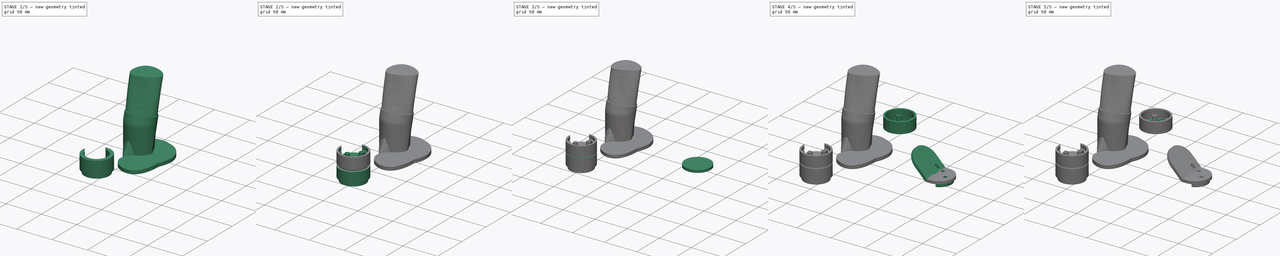
[diagram: build sequence overview — one tinted view per stage of 5, left to right]
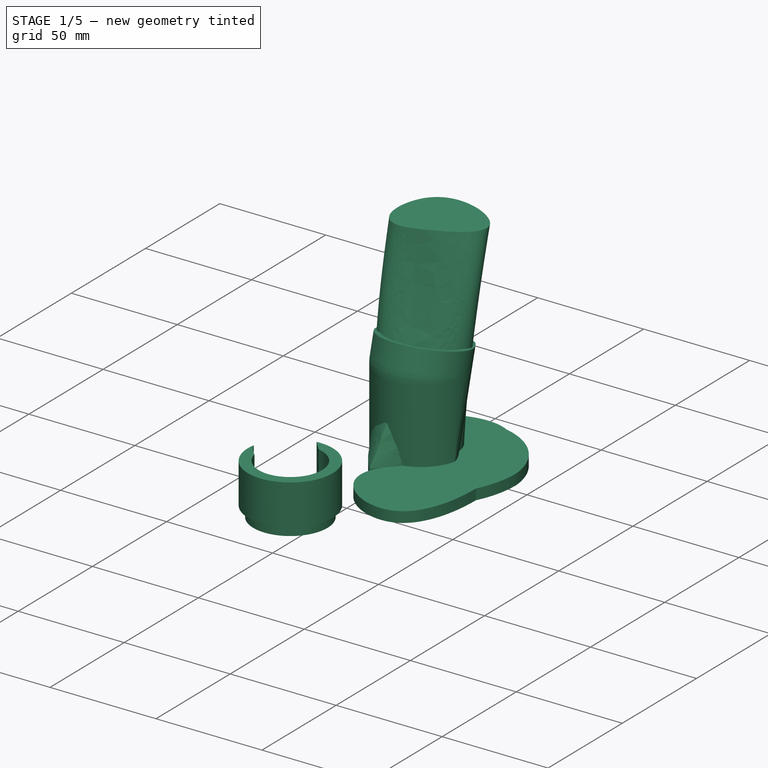
[diagram: stage 1 of 5 — iso view after this stage's code; geometry added in this stage tinted green]
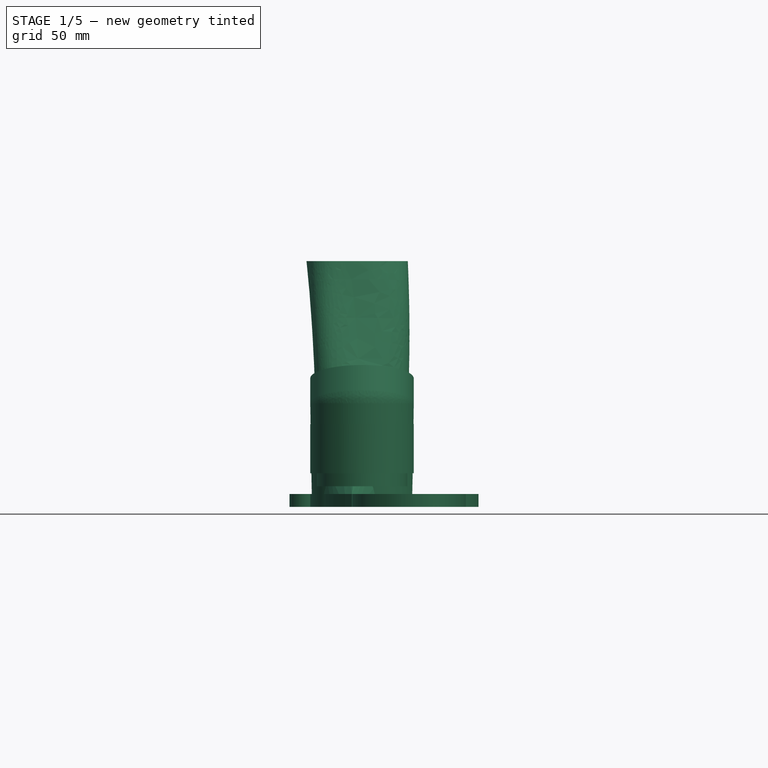
[diagram: stage 1 of 5 — front view after this stage's code; geometry added in this stage tinted green]
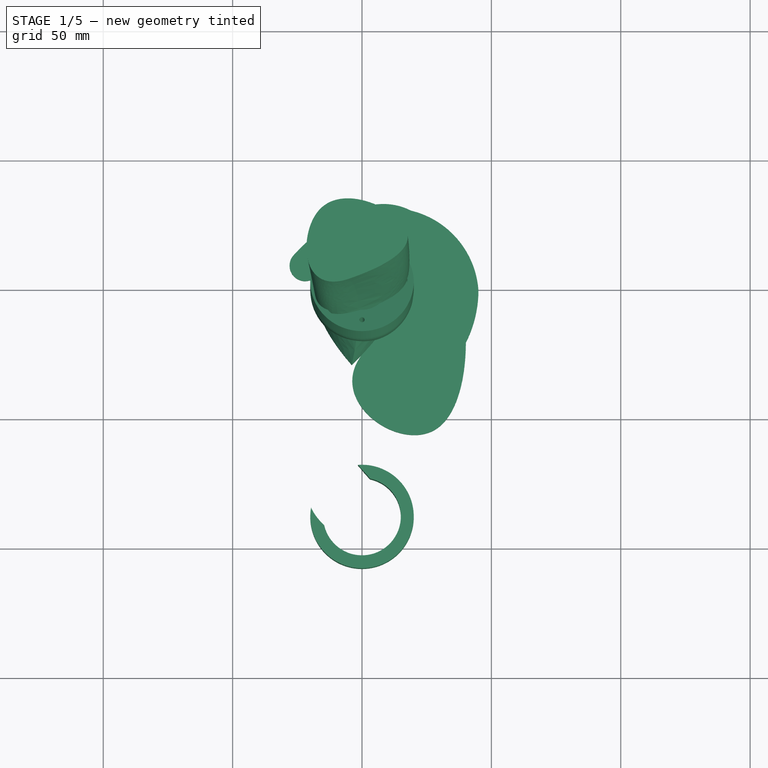
[diagram: stage 1 of 5 — top view after this stage's code; geometry added in this stage tinted green]
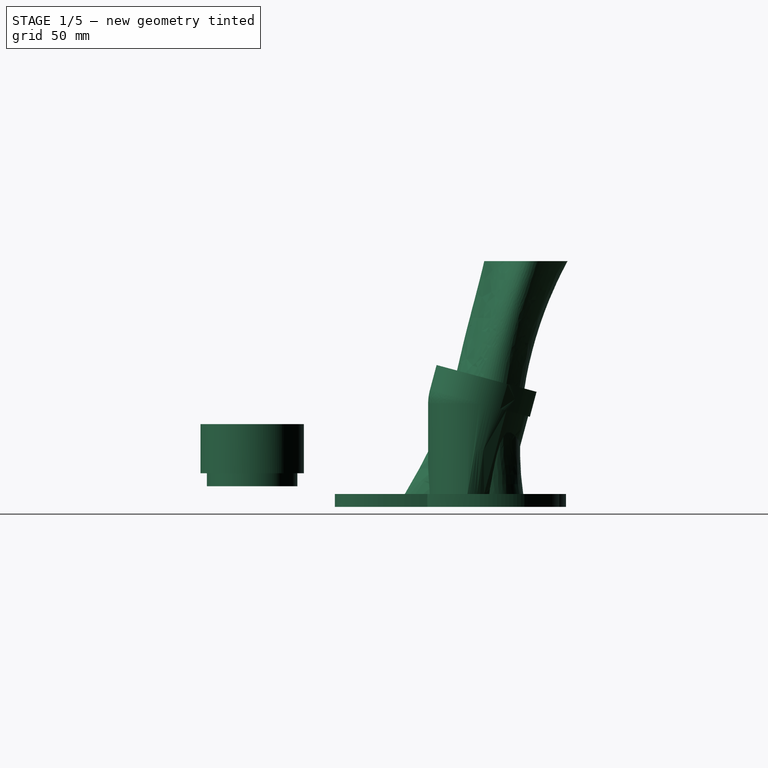
[diagram: stage 1 of 5 — right view after this stage's code; geometry added in this stage tinted green]
FCSTD DOCUMENT  (FreeCAD 1.0R39109 (Git))
Label: joistick
License: All rights reserved
LicenseURL: https://en.wikipedia.org/wiki/All_rights_reserved
objects: Sketcher::SketchObject×55, PartDesign::Pad×33, PartDesign::Pocket×31, PartDesign::Body×8, PartDesign::Chamfer×3, PartDesign::Draft×3, PartDesign::Revolution×1, PartDesign::AdditiveLoft×1
note: 334 computed .brp shape members not serialized (recipe doc carries the construction recipe); baked Part::Feature solids carry a one-line shape summary decoded from their .brp

FEATURE [Sketcher::SketchObject] Sketch002
  ArcFitTolerance = 0
  AttachmentSupport = -> [XY_Plane001]
  FullyConstrained = false
  MakeInternals = false
  MapMode = 5
  sketch-geometry (5):
    g0: ArcOfCircle CenterX=0 CenterY=-3.23e-14 CenterZ=0 NormalX=0 NormalY=0 NormalZ=1 AngleXU=0 Radius=45 StartAngle=5.31287 EndAngle=6.28319
    g1: ArcOfCircle CenterX=10.8695 CenterY=-2.54282 CenterZ=0 NormalX=0 NormalY=0 NormalZ=1 AngleXU=0 Radius=34.2251 StartAngle=0.0743654 EndAngle=1.89398
    g2: ArcOfCircle CenterX=15.9654 CenterY=-23.7362 CenterZ=0 NormalX=0 NormalY=0 NormalZ=1 AngleXU=0 Radius=16.3968 StartAngle=2.91171 EndAngle=5.32747
    g3: ArcOfCircle CenterX=1.71944 CenterY=23.6402 CenterZ=0 NormalX=0 NormalY=0 NormalZ=1 AngleXU=0 Radius=6.5017 StartAngle=1.83844 EndAngle=3.79268
    g4: ArcOfCircle CenterX=0 CenterY=-3.23e-14 CenterZ=0 NormalX=0 NormalY=0 NormalZ=1 AngleXU=0 Radius=20 StartAngle=1.74427 EndAngle=4.71239
  constraints (11):
    c: Coincident(g1,g0)
    c: Coincident(g2,g0)
    c: Radius(g0) = 45
    c: Coincident(g3,g1)
    c: PointOnObject(g2,g-2)
    c: PointOnObject(g0,g-1)
    c: PointOnObject(g1,g-2)
    c: Coincident(g4,g0)
    c: Coincident(g4,g3)
    c: Coincident(g4,g2)
    c: Radius(g4) = 20
FEATURE [PartDesign::Pad] Pad001
  Direction = (0,0,1)
  Length = 12
  Length2 = 10
  Profile = -> Sketch002
  ReferenceAxis = -> Sketch002 [N_Axis]
  Suppressed = false
  Type = 0
FEATURE [PartDesign::Pocket] Pocket001
  BaseFeature = -> Pad001
  Direction = (0,0,1)
  Length = 7
  Length2 = 5
  Profile = -> Pad001 [Face6]
  Suppressed = false
  Type = 0
FEATURE [Sketcher::SketchObject] Sketch003
  ArcFitTolerance = 0
  AttachmentSupport = -> [Pocket001]
  FullyConstrained = true
  MakeInternals = false
  MapMode = 5
  Placement = pos=(0,0,12) rot=(0,0,1;0rad)
  sketch-geometry (2):
    g0: Circle CenterX=0 CenterY=0 CenterZ=0 NormalX=0 NormalY=0 NormalZ=1 AngleXU=0 Radius=20
    g1: Circle CenterX=0 CenterY=0 CenterZ=0 NormalX=0 NormalY=0 NormalZ=1 AngleXU=0 Radius=10
  constraints (4):
    c: Coincident(g0,g-1)
    c: Radius(g0) = 20
    c: Radius(g1) = 10
    c: Coincident(g1,g0)
FEATURE [PartDesign::Pad] Pad002
  BaseFeature = -> Pocket001
  Direction = (0,0,1)
  Length = 35
  Length2 = 10
  Profile = -> Sketch003
  ReferenceAxis = -> Sketch003 [N_Axis]
  Suppressed = false
  Type = 0
FEATURE [PartDesign::Body] Body007  label="Dpad_holder"
  AllowCompound = false
  Group = -> [Sketch049,Pad023,Sketch050,Pocket021,Sketch051,Pocket022,Sketch054,Pad026,Pocket023,Pocket029,Pocket030,Sketch062,Pad030,Pocket031,Pocket032]
  Origin = -> Origin007
  Tip = -> Pocket032
FEATURE [Sketcher::SketchObject] Sketch039
  ArcFitTolerance = 0
  FullyConstrained = true
  MakeInternals = false
  MapMode = 5
  Placement = pos=(0,0,15) rot=(0,0,1;0rad)
  sketch-geometry (4):
    g0: ArcOfCircle CenterX=0 CenterY=-88 CenterZ=0 NormalX=0 NormalY=0 NormalZ=1 AngleXU=0 Radius=15 StartAngle=3.36291 EndAngle=7.64531
    g1: ArcOfCircle CenterX=0 CenterY=-88 CenterZ=0 NormalX=0 NormalY=0 NormalZ=1 AngleXU=0 Radius=20 StartAngle=2.96883 EndAngle=7.93306
    g2: ArcOfCircle CenterX=0 CenterY=-75 CenterZ=0 NormalX=0 NormalY=0 NormalZ=1 AngleXU=0 Radius=21.9 StartAngle=3.59343 EndAngle=3.98057
    g3: LineSegment StartX=-1.58 StartY=-68.0625 StartZ=0 EndX=3.10742 EndY=-73.3254 EndZ=0
  constraints (14):
    c: PointOnObject(g0,g-2)
    c: Coincident(g1,g0)
    c: Diameter(g0) = 30
    c: Diameter(g1) = 40
    c: DistanceY(g0,g-1) = 88
    c: PointOnObject(g2,g-2)
    c: Coincident(g2,g1)
    c: Coincident(g2,g0)
    c: DistanceY(g2,g-1) = 75
    c: Diameter(g2) = 43.8
    c: Coincident(g3,g1)
    c: Coincident(g3,g0)
    c: Angle(g3) = -0.843169
    c: DistanceX(g1,g2) = 1.58
FEATURE [PartDesign::Pad] Pad018
  Direction = (0,0,1)
  Length = 24
  Length2 = 10
  Placement = pos=(0,0,15) rot=(0,0,1;0rad)
  Profile = -> Sketch039
  ReferenceAxis = -> Sketch039 [N_Axis]
  Suppressed = false
  Type = 0
FEATURE [Sketcher::SketchObject] Sketch040
  ArcFitTolerance = 0
  AttachmentSupport = -> [Pad018]
  FullyConstrained = true
  MakeInternals = false
  MapMode = 5
  Placement = pos=(0,0,15) rot=(1,0,0;3.14159rad)
  sketch-geometry (2):
    g0: Circle CenterX=0 CenterY=88 CenterZ=0 NormalX=0 NormalY=0 NormalZ=1 AngleXU=0 Radius=17.5
    g1: Circle CenterX=0 CenterY=88 CenterZ=0 NormalX=0 NormalY=0 NormalZ=1 AngleXU=0 Radius=20
  constraints (5):
    c: PointOnObject(g0,g-2)
    c: Diameter(g0) = 35
    c: DistanceY(g-1,g0) = 88
    c: Coincident(g1,g0)
    c: Diameter(g1) = 40
FEATURE [PartDesign::Pocket] Pocket015
  BaseFeature = -> Pad018
  Direction = (0,0,1)
  Length = 5
  Length2 = 5
  Placement = pos=(0,0,15) rot=(0,0,1;0rad)
  Profile = -> Sketch040
  ReferenceAxis = -> Sketch040 [N_Axis]
  Suppressed = false
  Type = 0
FEATURE [PartDesign::Revolution] Revolution
  Angle = 15
  Angle2 = 60
  Axis = (1,4.977e-13,0)
  Base = (-20,2.4e-15,47)
  BaseFeature = -> Pad002
  Profile = -> Sketch008
  ReferenceAxis = -> Sketch008 [Edge1]
  Reversed = true
  Suppressed = false
  Type = 0
FEATURE [Sketcher::SketchObject] Sketch086
  ArcFitTolerance = 0
  AttachmentSupport = -> [Revolution]
  ExternalGeometry = -> [Revolution]
  FullyConstrained = true
  MakeInternals = false
  MapMode = 5
  Placement = pos=(-5.8482e-12,11.75,43.8516) rot=(-1,0,0;0.261799rad)
  sketch-geometry (33):
    g0: LineSegment [constr] StartX=-20 StartY=-12.1645 StartZ=0 EndX=-20 EndY=-7.1645 EndZ=0
    g1: LineSegment [constr] StartX=20 StartY=-12.1645 StartZ=0 EndX=20 EndY=-7.1645 EndZ=0
    g2: GeomPoint [constr] X=0 Y=7.15402 Z=0
    g3: LineSegment [constr] StartX=5 StartY=7.15402 StartZ=0 EndX=15.5656 EndY=3.20631 EndZ=0
    g4: LineSegment [constr] StartX=15.5656 StartY=3.20631 StartZ=0 EndX=20 EndY=-7.1645 EndZ=0
    g5: LineSegment [constr] StartX=-5 StartY=7.15402 StartZ=0 EndX=-15.5656 EndY=3.20631 EndZ=0
    g6: LineSegment [constr] StartX=-15.5656 StartY=3.20631 StartZ=0 EndX=-20 EndY=-7.1645 EndZ=0
    g7: GeomPoint [constr] X=2.16948e-07 Y=7.15402 Z=0
    g8: GeomPoint [constr] X=0 Y=7.15402 Z=0
    g9: LineSegment StartX=2.16948e-07 StartY=7.15402 StartZ=0 EndX=0 EndY=7.15402 EndZ=0
    g10: LineSegment [constr] StartX=2.16948e-07 StartY=7.15402 StartZ=0 EndX=-5 EndY=7.15402 EndZ=0
    g11: LineSegment [constr] StartX=0 StartY=7.15402 StartZ=0 EndX=5 EndY=7.15402 EndZ=0
    g12: ArcOfCircle CenterX=0 CenterY=-12.846 CenterZ=0 NormalX=0 NormalY=0 NormalZ=1 AngleXU=0 Radius=50 StartAngle=0.0136301 EndAngle=3.12796
    g13: LineSegment StartX=20 StartY=-12.1645 StartZ=0 EndX=49.9954 EndY=-12.1645 EndZ=0
    g14: LineSegment StartX=-20 StartY=-12.1645 StartZ=0 EndX=-49.9954 EndY=-12.1645 EndZ=0
    g15-g19: Circle [constr] x5 (B-spline internal-alignment scaffolding for g20; pole/knot coordinates omitted)
    g20: BSplineCurve PolesCount=5 KnotsCount=3 Degree=3 IsPeriodic=0
    g21: GeomPoint [constr] X=2.16948e-07 Y=7.15402 Z=0
    g22: GeomPoint [constr] X=-14.0328 Y=1.60054 Z=0
    g23: GeomPoint [constr] X=-20 Y=-12.1645 Z=0
    g24-g28: Circle [constr] x5 (B-spline internal-alignment scaffolding for g29; pole/knot coordinates omitted)
    g29: BSplineCurve PolesCount=5 KnotsCount=3 Degree=3 IsPeriodic=0
    g30: GeomPoint [constr] X=20 Y=-12.1645 Z=0
    g31: GeomPoint [constr] X=14.0328 Y=1.60054 Z=0
    g32: GeomPoint [constr] X=0 Y=7.15402 Z=0
  constraints (66):
    c: Equal(g1,g0)
    c: PointOnObject(g2,g-2)
    c: Coincident(g4,g3)
    c: Coincident(g4,g1)
    c: Equal(g3,g4)
    c: DistanceY(g12,g2) = 20
    c: Coincident(g6,g5)
    c: Coincident(g6,g0)
    c: Equal(g5,g6)
    c: Coincident(g9,g7)
    c: Coincident(g9,g8)
    c: Coincident(g10,g9)
    c: Coincident(g10,g5)
    c: Horizontal(g10)
    c: Coincident(g11,g9)
    c: Coincident(g11,g3)
    c: Horizontal(g11)
    c: Equal(g11,g10)
    c: Horizontal(g9)
    c: Equal(g10,g0)
    c: DistanceX(g11,g11) = 5
    c: Coincident(g13,g1)
    c: Coincident(g13,g12)
    c: Coincident(g14,g0)
    c: Coincident(g14,g12)
    c: Horizontal(g13)
    c: Diameter(g12) = 100
    c: Weight(g15) = 1
    c: Coincident(g20,g9)
    c: Equal(g15,g16)
    c: Coincident(g16,g5)
    c: Equal(g15,g17)
    c: Coincident(g17,g5)
    c: Equal(g15,g18)
    c: Coincident(g18,g0)
    c: Equal(g15,g19)
    c: Coincident(g20,g14)
    c: InternalAlignment(g15-g19 -> g20) x5
    c: InternalAlignment(g21,g20)
    c: InternalAlignment(g22,g20)
    c: InternalAlignment(g23,g20)
    c: Weight(g24) = 1
    c: Coincident(g29,g13)
    c: Equal(g24,g25)
    c: Coincident(g25,g1)
    c: Equal(g24,g26)
    c: Coincident(g26,g3)
    c: Equal(g24,g27)
    c: Coincident(g27,g3)
    c: Equal(g24,g28)
    c: Coincident(g29,g9)
    c: InternalAlignment(g24-g28 -> g29) x5
    c: InternalAlignment(g30,g29)
    c: InternalAlignment(g31,g29)
    c: InternalAlignment(g32,g29)
    c: Vertical(g1)
    c: PointOnObject(g7,g-3)
    c: PointOnObject(g22,g-3)
    c: PointOnObject(g2,g-3)
    c: PointOnObject(g31,g-3)
    c: Coincident(g2,g8)
    c: Coincident(g1,g-4)
    c: Coincident(g0,g-5)
    c: Vertical(g0)
    c: Horizontal(g14)
    c: PointOnObject(g12,g-2)
FEATURE [Sketcher::SketchObject] Sketch088
  ArcFitTolerance = 0
  FullyConstrained = true
  MakeInternals = false
  MapMode = 5
  Placement = pos=(0,14.3382,53.5109) rot=(-1,0,0;0.261799rad)
  sketch-geometry (2):
    g0: Circle CenterX=0 CenterY=-12.1645 CenterZ=0 NormalX=0 NormalY=0 NormalZ=1 AngleXU=0 Radius=20
    g1: Circle CenterX=0 CenterY=-12.1645 CenterZ=0 NormalX=0 NormalY=0 NormalZ=1 AngleXU=0 Radius=25
  constraints (4):
    c: Coincident(g0,g-3)
    c: PointOnObject(g-3,g0)
    c: Coincident(g1,g0)
    c: Diameter(g1) = 50
FEATURE [PartDesign::Pad] Pad048
  BaseFeature = -> Revolution
  Direction = (0,0.258819,0.965926)
  Length = 10
  Length2 = 10
  Profile = -> Sketch088
  ReferenceAxis = -> Sketch088 [N_Axis]
  Suppressed = false
  Type = 0
FEATURE [Sketcher::SketchObject] Sketch089
  ArcFitTolerance = 0
  FullyConstrained = true
  MakeInternals = false
  MapMode = 5
  Placement = pos=(0,14.3382,53.5109) rot=(-1,0,0;0.261799rad)
  sketch-geometry (1):
    g0: Circle CenterX=0 CenterY=-12.1645 CenterZ=0 NormalX=0 NormalY=0 NormalZ=1 AngleXU=0 Radius=17.5
  constraints (2):
    c: Coincident(g0,g-3)
    c: Diameter(g0) = 35
FEATURE [PartDesign::Pocket] Pocket049
  BaseFeature = -> Pad048
  Direction = (0,-0.258819,-0.965926)
  Length = 5
  Length2 = 5
  Profile = -> Sketch089
  ReferenceAxis = -> Sketch089 [N_Axis]
  Suppressed = false
  Type = 0
FEATURE [Sketcher::SketchObject] Sketch090
  ArcFitTolerance = 0
  AttachmentSupport = -> [Pocket049]
  ExternalGeometry = -> [Pocket049]
  FullyConstrained = true
  MakeInternals = false
  MapMode = 5
  Placement = pos=(0,13.0441,48.6812) rot=(-1,0,0;0.261799rad)
  sketch-geometry (4):
    g0: Circle [constr] CenterX=-5e-16 CenterY=-12.1645 CenterZ=0 NormalX=0 NormalY=0 NormalZ=1 AngleXU=0 Radius=14
    g1: LineSegment [constr] StartX=-5e-16 StartY=-12.1645 StartZ=0 EndX=14 EndY=-12.1645 EndZ=0
    g2: Circle CenterX=14 CenterY=-12.1645 CenterZ=0 NormalX=0 NormalY=0 NormalZ=1 AngleXU=0 Radius=1
    g3: Circle CenterX=0 CenterY=-26.1645 CenterZ=0 NormalX=0 NormalY=0 NormalZ=1 AngleXU=0 Radius=1
  constraints (10):
    c: Diameter(g0) = 28
    c: Coincident(g1,g0)
    c: PointOnObject(g1,g0)
    c: Horizontal(g1)
    c: Coincident(g2,g1)
    c: PointOnObject(g3,g-2)
    c: PointOnObject(g3,g0)
    c: Diameter(g2) = 2
    c: Equal(g2,g3)
    c: Coincident(g0,g-3)
FEATURE [PartDesign::Pocket] Pocket051
  BaseFeature = -> Pocket049
  Direction = (0,-0.258819,-0.965926)
  Length = 8
  Length2 = 5
  Profile = -> Sketch090
  ReferenceAxis = -> Sketch090 [N_Axis]
  Suppressed = false
  Type = 0
FEATURE [PartDesign::Pad] Pad051
  BaseFeature = -> Pocket051
  Direction = (0,0,1)
  Length = 10
  Length2 = 10
  Profile = -> Pocket051 [Face52]
  Suppressed = false
  Type = 0
FEATURE [Sketcher::SketchObject] Sketch093
  ArcFitTolerance = 0
  AttachmentSupport = -> [Pad051]
  FullyConstrained = true
  MakeInternals = false
  MapMode = 5
  Placement = pos=(0,0,22) rot=(0,0,1;0rad)
  sketch-geometry (11):
    g0: Circle CenterX=5e-16 CenterY=-1e-16 CenterZ=0 NormalX=0 NormalY=0 NormalZ=1 AngleXU=0 Radius=1.25
    g1: LineSegment [constr] StartX=-8.13173 StartY=8.13173 StartZ=0 EndX=8.13173 EndY=8.13173 EndZ=0
    g2: LineSegment [constr] StartX=8.13173 StartY=8.13173 StartZ=0 EndX=8.13173 EndY=-8.13173 EndZ=0
    g3: LineSegment [constr] StartX=8.13173 StartY=-8.13173 StartZ=0 EndX=-8.13173 EndY=-8.13173 EndZ=0
    g4: LineSegment [constr] StartX=-8.13173 StartY=-8.13173 StartZ=0 EndX=-8.13173 EndY=8.13173 EndZ=0
    g5: Circle [constr] CenterX=5e-16 CenterY=-1e-16 CenterZ=0 NormalX=0 NormalY=0 NormalZ=1 AngleXU=0 Radius=9
    g6: Circle [constr] CenterX=8.13173 CenterY=8.13173 CenterZ=0 NormalX=0 NormalY=0 NormalZ=1 AngleXU=0 Radius=2.5
    g7: Circle CenterX=8.13173 CenterY=8.13173 CenterZ=0 NormalX=0 NormalY=0 NormalZ=1 AngleXU=0 Radius=1
    g8: Circle CenterX=-8.13173 CenterY=8.13173 CenterZ=0 NormalX=0 NormalY=0 NormalZ=1 AngleXU=0 Radius=1
    g9: Circle CenterX=-8.13173 CenterY=-8.13173 CenterZ=0 NormalX=0 NormalY=0 NormalZ=1 AngleXU=0 Radius=1
    g10: Circle CenterX=8.13173 CenterY=-8.13173 CenterZ=0 NormalX=0 NormalY=0 NormalZ=1 AngleXU=0 Radius=1
  constraints (25):
    c: Coincident(g0,g-1)
    c: Diameter(g0) = 2.5
    c: Coincident(g1,g2)
    c: Coincident(g2,g3)
    c: Coincident(g3,g4)
    c: Coincident(g4,g1)
    c: Horizontal(g1)
    c: Horizontal(g3)
    c: Vertical(g2)
    c: Vertical(g4)
    c: Symmetric(g1,g3,g0)
    c: Equal(g1,g4)
    c: Coincident(g5,g0)
    c: Coincident(g6,g1)
    c: Tangent(g6,g5)
    c: Diameter(g6) = 5
    c: Diameter(g5) = 18
    c: Coincident(g7,g1)
    c: Coincident(g8,g1)
    c: Coincident(g9,g3)
    c: Coincident(g10,g2)
    c: Diameter(g7) = 2
    c: Equal(g7,g8)
    c: Equal(g9,g8)
    c: Equal(g10,g9)
FEATURE [PartDesign::Pocket] Pocket054
  BaseFeature = -> Pad051
  Direction = (0,0,-1)
  Length = 5
  Length2 = 5
  Profile = -> Sketch093
  ReferenceAxis = -> Sketch093 [N_Axis]
  Suppressed = false
  Type = 1
FEATURE [PartDesign::Body] Body  label="Second_floor"
  AllowCompound = false
  Group = -> [Sketch039,Pad018,Sketch040,Pocket015,Sketch041,Pad019,Pocket016,Sketch042,Pad020,Sketch043,Pocket017,Sketch044,Pad021,Chamfer002,Sketch045,Pocket018,Sketch046,Pocket019,Sketch047,Pad022,Sketch048,Pocket020,Pocket050,Sketch102,Pocket060]
  Origin = -> Origin
  Tip = -> Pocket060
FEATURE [Sketcher::SketchObject] Sketch082
  ArcFitTolerance = 0
  FullyConstrained = false
  MakeInternals = false
  MapMode = 5
  Placement = pos=(59.5,-1.01e-14,59.5) rot=(0,1,0;0.785398rad)
  sketch-geometry (9):
    g0: LineSegment [constr] StartX=47.7389 StartY=9.25 StartZ=0 EndX=69.2389 EndY=9.25 EndZ=0
    g1: LineSegment [constr] StartX=69.2389 StartY=9.25 StartZ=0 EndX=69.2389 EndY=-9.25 EndZ=0
    g2: LineSegment [constr] StartX=69.2389 StartY=-9.25 StartZ=0 EndX=47.7389 EndY=-9.25 EndZ=0
    g3: LineSegment [constr] StartX=47.7389 StartY=-9.25 StartZ=0 EndX=47.7389 EndY=9.25 EndZ=0
    g4: GeomPoint [constr] X=58.4889 Y=0 Z=0
    g5: Circle CenterX=47.7389 CenterY=9.25 CenterZ=0 NormalX=0 NormalY=0 NormalZ=1 AngleXU=0 Radius=1.5
    g6: Circle CenterX=47.7389 CenterY=-9.25 CenterZ=0 NormalX=0 NormalY=0 NormalZ=1 AngleXU=0 Radius=1.5
    g7: Circle CenterX=47.7389 CenterY=9.25 CenterZ=0 NormalX=0 NormalY=0 NormalZ=1 AngleXU=0 Radius=3
    g8: Circle CenterX=47.7389 CenterY=-9.25 CenterZ=0 NormalX=0 NormalY=0 NormalZ=1 AngleXU=0 Radius=3
  constraints (20):
    c: Coincident(g0,g1)
    c: Coincident(g1,g2)
    c: Coincident(g3,g0)
    c: Horizontal(g0)
    c: Horizontal(g2)
    c: Vertical(g1)
    c: Vertical(g3)
    c: DistanceX(g0,g0) = 21.5
    c: DistanceY(g3,g3) = 18.5
    c: Symmetric(g0,g1,g4)
    c: Coincident(g5,g0)
    c: Diameter(g5) = 3
    c: Coincident(g2,g3)
    c: PointOnObject(g4,g-1)
    c: Coincident(g6,g2)
    c: Equal(g5,g6)
    c: Coincident(g7,g5)
    c: Diameter(g7) = 6
    c: Coincident(g8,g6)
    c: Equal(g7,g8)
FEATURE [PartDesign::Body] Body011  label="Dpad_angle"
  AllowCompound = false
  Group = -> [Sketch074,Pad040,Sketch075,Pad041,Sketch076,Pad042,Sketch077,Pocket040,Sketch078,Pad043,Pad044,Pad045,Pocket041,Sketch079,Pocket042,Sketch082]
  Origin = -> Origin011
  Tip = -> Pocket042
FEATURE [PartDesign::Pocket] Pocket
  BaseFeature = -> Pocket054
  Direction = (1,1,1)
  Length = 0
  Length2 = 5
  Profile = -> Sketch086
  ReferenceAxis = -> Sketch086 [N_Axis]
  Refine = true
  Suppressed = false
  Type = 3
  UpToFace = -> Pocket054 [Face5]
FEATURE [PartDesign::Body] Body001  label="předělat"
  AllowCompound = false
  Group = -> [Sketch002,Pad001,Pocket001,Sketch003,Pad002,Sketch008,Revolution,Sketch086,Sketch088,Pad048,Sketch089,Pocket049,Sketch090,Pocket051,Pad051,Sketch093,Pocket054,Pocket]
  Origin = -> Origin001
  Tip = -> Pocket
FEATURE [Sketcher::SketchObject] Sketch103
  ArcFitTolerance = 0
  AttachmentSupport = -> [XY_Plane012]
  FullyConstrained = true
  MakeInternals = false
  MapMode = 5
  sketch-geometry (39):
    g0: LineSegment [constr] StartX=-28 StartY=32 StartZ=0 EndX=-28 EndY=-53 EndZ=0
    g1: LineSegment [constr] StartX=-28 StartY=-53 StartZ=0 EndX=40 EndY=-53 EndZ=0
    g2: LineSegment [constr] StartX=40 StartY=-53 StartZ=0 EndX=40 EndY=32 EndZ=0
    g3: LineSegment [constr] StartX=40 StartY=32 StartZ=0 EndX=-28 EndY=32 EndZ=0
    g4: ArcOfCircle CenterX=-22 CenterY=9.45 CenterZ=0 NormalX=0 NormalY=0 NormalZ=1 AngleXU=0 Radius=6 StartAngle=2.39063 EndAngle=5.53222
    g5-g10: Circle [constr] x6 (B-spline internal-alignment scaffolding for g11; pole/knot coordinates omitted)
    g11: BSplineCurve PolesCount=6 KnotsCount=4 Degree=3 IsPeriodic=0
    g12: GeomPoint [constr] X=-26.3862 Y=13.5441 Z=0
    g13: GeomPoint [constr] X=0 Y=-25 Z=0
    g14: LineSegment [constr] StartX=-26.3862 StartY=13.5441 StartZ=0 EndX=0 EndY=41.8131 EndZ=0
    g15: GeomPoint [constr] X=0 Y=32 Z=0
    g16-g19: Circle [constr] x4 (B-spline internal-alignment scaffolding for g20; pole/knot coordinates omitted)
    g20: BSplineCurve [constr] PolesCount=4 KnotsCount=2 Degree=3 IsPeriodic=0
    g21: GeomPoint [constr] X=-3.93912 Y=-29 Z=0
    g22: GeomPoint [constr] X=-3.93912 Y=-29 Z=0
    g23: LineSegment [constr] StartX=-57.2741 StartY=32 StartZ=0 EndX=58.7259 EndY=32 EndZ=0
    g24: LineSegment [constr] StartX=-22 StartY=9.45 StartZ=0 EndX=-17.6138 EndY=5.35595 EndZ=0
    g25: LineSegment [constr] StartX=-26.3862 StartY=13.5441 StartZ=0 EndX=-22 EndY=9.45 EndZ=0
    g26: BSplineCurve PolesCount=4 KnotsCount=2 Degree=3 IsPeriodic=0
    g27-g30: Circle [constr] x4 (B-spline internal-alignment scaffolding for g26; pole/knot coordinates omitted)
    g31: GeomPoint [constr] X=-3.93912 Y=-29 Z=0
    g32: GeomPoint [constr] X=-17.6138 Y=5.35595 Z=0
    g33: Circle [constr] CenterX=-3.93912 CenterY=-29 CenterZ=0 NormalX=0 NormalY=0 NormalZ=1 AngleXU=0 Radius=1
    g34: Circle [constr] CenterX=-1.70422 CenterY=-26.8116 CenterZ=0 NormalX=0 NormalY=0 NormalZ=1 AngleXU=0 Radius=1
    g35: Circle [constr] CenterX=0 CenterY=-25 CenterZ=0 NormalX=0 NormalY=0 NormalZ=1 AngleXU=0 Radius=1
    g36: BSplineCurve PolesCount=3 KnotsCount=2 Degree=2 IsPeriodic=0
    g37: GeomPoint [constr] X=-3.93912 Y=-29 Z=0
    g38: GeomPoint [constr] X=0 Y=-25 Z=0
  constraints (86):
    c: Coincident(g0,g1)
    c: Coincident(g1,g2)
    c: Coincident(g2,g3)
    c: Coincident(g3,g0)
    c: Vertical(g0)
    c: Vertical(g2)
    c: Horizontal(g1)
    c: Horizontal(g3)
    c: DistanceY(g0,g0) = 85
    c: DistanceX(g3,g3) = 68
    c: DistanceX(g0,g-1) = 28
    c: DistanceY(g-1,g0) = 32
    c: Tangent(g4,g0)
    c: Weight(g5) = 1
    c: Equal(g5, g6-g10) x5
    c: InternalAlignment(g5-g10 -> g11) x6
    c: InternalAlignment(g12,g11)
    c: InternalAlignment(g13,g11)
    c: Coincident(g5,g4)
    c: Coincident(g14,g11)
    c: Coincident(g14,g6)
    c: PointOnObject(g6,g-2)
    c: PointOnObject(g15,g3)
    c: PointOnObject(g15,g-2)
    c: PointOnObject(g15,g11)
    c: PointOnObject(g11,g-2)
    c: DistanceY(g11,g-1) = 25
    c: DistanceY(g-1,g4) = 9.45
    c: DistanceX(g1,g8) = 2.44
    c: DistanceY(g8,g1) = 30.11
    c: DistanceY(g2,g7) = 0.53
    c: DistanceX(g2,g7) = 3.96
    c: Weight(g16) = 1
    c: Equal(g16,g17)
    c: Equal(g16,g18)
    c: Equal(g16,g19)
    c: InternalAlignment(g16-g19 -> g20) x4
    c: InternalAlignment(g21,g20)
    c: InternalAlignment(g22,g20)
    c: Coincident(g19,g16)
    c: Coincident(g23,g18)
    c: Coincident(g23,g17)
    c: Horizontal(g23)
    c: PointOnObject(g4,g20)
    c: PointOnObject(g11,g20)
    c: PointOnObject(g0,g23)
    c: DistanceX(g23,g23) = 116
    c: DistanceY(g0,g20) = 24
    c: Coincident(g24,g4)
    c: Coincident(g24,g4)
    c: Coincident(g25,g4)
    c: Coincident(g25,g4)
    c: Parallel(g25,g24)
    c: DistanceX(g9) = -13.91
    c: DistanceY(g9) = -42.7914
    c: InternalAlignment(g27,g26)
    c: Weight(g27) = 1
    c: InternalAlignment(g28,g26)
    c: Equal(g28,g27)
    c: InternalAlignment(g29,g26)
    c: Equal(g29,g27)
    c: InternalAlignment(g30,g26)
    c: Equal(g30,g27)
    c: InternalAlignment(g31,g26)
    c: InternalAlignment(g32,g26)
    c: DistanceX(g29) = -20.0336
    c: DistanceY(g29) = -2.26903
    c: DistanceX(g28) = -17.2982
    c: DistanceY(g28) = -13.721
    c: DistanceX(g26) = -3.93912
    c: DistanceY(g26) = -29
    c: Coincident(g26,g4)
    c: Tangent(g14,g4)
    c: Weight(g33) = 1
    c: Equal(g33,g34)
    c: Equal(g33,g35)
    c: InternalAlignment(g33,g36)
    c: InternalAlignment(g34,g36)
    c: InternalAlignment(g35,g36)
    c: InternalAlignment(g37,g36)
    c: InternalAlignment(g38,g36)
    c: Coincident(g33,g26)
    c: Coincident(g35,g11)
    c: DistanceX(g34) = -1.70422
    c: DistanceY(g34) = -26.8116
    c: Diameter(g4) = 12
FEATURE [PartDesign::Pad] Pad
  Direction = (0,0,1)
  Length = 12
  Length2 = -7
  Profile = -> Sketch103
  ReferenceAxis = -> Sketch103 [N_Axis]
  Refine = true
  Suppressed = false
  Type = 4
FEATURE [Sketcher::SketchObject] Sketch110
  ArcFitTolerance = 0
  AttachmentSupport = -> [Pad]
  FullyConstrained = true
  MakeInternals = false
  MapMode = 5
  Placement = pos=(0,0,7) rot=(1,0,0;3.14159rad)
  sketch-geometry (11):
    g0: Circle CenterX=5e-16 CenterY=-1e-16 CenterZ=0 NormalX=0 NormalY=0 NormalZ=1 AngleXU=0 Radius=1.25
    g1: LineSegment [constr] StartX=-8.13173 StartY=8.13173 StartZ=0 EndX=8.13173 EndY=8.13173 EndZ=0
    g2: LineSegment [constr] StartX=8.13173 StartY=8.13173 StartZ=0 EndX=8.13173 EndY=-8.13173 EndZ=0
    g3: LineSegment [constr] StartX=8.13173 StartY=-8.13173 StartZ=0 EndX=-8.13173 EndY=-8.13173 EndZ=0
    g4: LineSegment [constr] StartX=-8.13173 StartY=-8.13173 StartZ=0 EndX=-8.13173 EndY=8.13173 EndZ=0
    g5: Circle [constr] CenterX=5e-16 CenterY=-1e-16 CenterZ=0 NormalX=0 NormalY=0 NormalZ=1 AngleXU=0 Radius=9
    g6: Circle [constr] CenterX=8.13173 CenterY=8.13173 CenterZ=0 NormalX=0 NormalY=0 NormalZ=1 AngleXU=0 Radius=2.5
    g7: Circle CenterX=8.13173 CenterY=8.13173 CenterZ=0 NormalX=0 NormalY=0 NormalZ=1 AngleXU=0 Radius=1
    g8: Circle CenterX=-8.13173 CenterY=8.13173 CenterZ=0 NormalX=0 NormalY=0 NormalZ=1 AngleXU=0 Radius=1
    g9: Circle CenterX=-8.13173 CenterY=-8.13173 CenterZ=0 NormalX=0 NormalY=0 NormalZ=1 AngleXU=0 Radius=1
    g10: Circle CenterX=8.13173 CenterY=-8.13173 CenterZ=0 NormalX=0 NormalY=0 NormalZ=1 AngleXU=0 Radius=1
  constraints (25):
    c: Coincident(g0,g-1)
    c: Diameter(g0) = 2.5
    c: Coincident(g1,g2)
    c: Coincident(g2,g3)
    c: Coincident(g3,g4)
    c: Coincident(g4,g1)
    c: Horizontal(g1)
    c: Horizontal(g3)
    c: Vertical(g2)
    c: Vertical(g4)
    c: Symmetric(g1,g3,g0)
    c: Equal(g1,g4)
    c: Coincident(g5,g0)
    c: Coincident(g6,g1)
    c: Tangent(g6,g5)
    c: Diameter(g6) = 5
    c: Diameter(g5) = 18
    c: Coincident(g7,g1)
    c: Coincident(g8,g1)
    c: Coincident(g9,g3)
    c: Coincident(g10,g2)
    c: Diameter(g7) = 2
    c: Equal(g7,g8)
    c: Equal(g9,g8)
    c: Equal(g10,g9)
FEATURE [Sketcher::SketchObject] Sketch111
  ArcFitTolerance = 0
  AttachmentSupport = -> [Pad]
  FullyConstrained = true
  MakeInternals = false
  MapMode = 5
  Placement = pos=(0,0,12) rot=(0,0,1;0rad)
  sketch-geometry (26):
    g0: LineSegment [constr] StartX=-28 StartY=32 StartZ=0 EndX=-28 EndY=-53 EndZ=0
    g1: LineSegment [constr] StartX=-28 StartY=-53 StartZ=0 EndX=40 EndY=-53 EndZ=0
    g2: LineSegment [constr] StartX=40 StartY=-53 StartZ=0 EndX=40 EndY=32 EndZ=0
    g3: LineSegment [constr] StartX=40 StartY=32 StartZ=0 EndX=-28 EndY=32 EndZ=0
    g4: ArcOfCircle [constr] CenterX=-22 CenterY=9.45 CenterZ=0 NormalX=0 NormalY=0 NormalZ=1 AngleXU=0 Radius=6 StartAngle=2.39063 EndAngle=5.53222
    g5-g10: Circle [constr] x6 (B-spline internal-alignment scaffolding for g11; pole/knot coordinates omitted)
    g11: BSplineCurve [constr] PolesCount=6 KnotsCount=4 Degree=3 IsPeriodic=0
    g12: GeomPoint [constr] X=-26.3862 Y=13.5441 Z=0
    g13: GeomPoint [constr] X=0 Y=-25 Z=0
    g14: LineSegment [constr] StartX=-26.3862 StartY=13.5441 StartZ=0 EndX=0 EndY=41.8131 EndZ=0
    g15: GeomPoint [constr] X=0 Y=32 Z=0
    g16-g19: Circle [constr] x4 (B-spline internal-alignment scaffolding for g20; pole/knot coordinates omitted)
    g20: BSplineCurve PolesCount=4 KnotsCount=2 Degree=3 IsPeriodic=0
    g21: GeomPoint [constr] X=-3.93912 Y=-29 Z=0
    g22: GeomPoint [constr] X=-3.93912 Y=-29 Z=0
    g23: LineSegment [constr] StartX=-57.2741 StartY=32 StartZ=0 EndX=58.7259 EndY=32 EndZ=0
    g24: LineSegment [constr] StartX=-22 StartY=9.45 StartZ=0 EndX=-17.6138 EndY=5.35595 EndZ=0
    g25: LineSegment [constr] StartX=-26.3862 StartY=13.5441 StartZ=0 EndX=-22 EndY=9.45 EndZ=0
  constraints (57):
    c: Coincident(g0,g1)
    c: Coincident(g1,g2)
    c: Coincident(g2,g3)
    c: Coincident(g3,g0)
    c: Vertical(g0)
    c: Vertical(g2)
    c: Horizontal(g1)
    c: Horizontal(g3)
    c: DistanceY(g0,g0) = 85
    c: DistanceX(g3,g3) = 68
    c: DistanceX(g0,g-1) = 28
    c: DistanceY(g-1,g0) = 32
    c: Tangent(g4,g0)
    c: Weight(g5) = 1
    c: Equal(g5, g6-g10) x5
    c: InternalAlignment(g5-g10 -> g11) x6
    c: InternalAlignment(g12,g11)
    c: InternalAlignment(g13,g11)
    c: Coincident(g5,g4)
    c: Coincident(g14,g11)
    c: Coincident(g14,g6)
    c: PointOnObject(g6,g-2)
    c: PointOnObject(g15,g3)
    c: PointOnObject(g15,g-2)
    c: PointOnObject(g15,g11)
    c: PointOnObject(g11,g-2)
    c: DistanceY(g11,g-1) = 25
    c: DistanceY(g-1,g4) = 9.45
    c: DistanceX(g1,g8) = 2.44
    c: DistanceY(g8,g1) = 30.11
    c: DistanceY(g2,g7) = 0.53
    c: DistanceX(g2,g7) = 3.96
    c: Weight(g16) = 1
    c: Equal(g16,g17)
    c: Equal(g16,g18)
    c: Equal(g16,g19)
    c: InternalAlignment(g16-g19 -> g20) x4
    c: InternalAlignment(g21,g20)
    c: InternalAlignment(g22,g20)
    c: Coincident(g19,g16)
    c: Coincident(g23,g18)
    c: Coincident(g23,g17)
    c: Horizontal(g23)
    c: PointOnObject(g4,g20)
    c: PointOnObject(g11,g20)
    c: PointOnObject(g0,g23)
    c: DistanceX(g23,g23) = 116
    c: DistanceY(g0,g20) = 24
    c: Coincident(g24,g4)
    c: Coincident(g24,g4)
    c: Coincident(g25,g4)
    c: Coincident(g25,g4)
    c: Parallel(g25,g24)
    c: DistanceX(g9) = -13.91
    c: DistanceY(g9) = -42.7914
    c: Tangent(g14,g4)
    c: Diameter(g4) = 12
FEATURE [Sketcher::SketchObject] Sketch
  ArcFitTolerance = 1e-06
  AttachmentOffset = pos=(0,0,75) rot=(0,0,1;0rad)
  AttachmentSupport = -> [Pad]
  ExternalGeometry = -> [Pad]
  FullyConstrained = true
  MakeInternals = false
  MapMode = 5
  Placement = pos=(0,0,87) rot=(0,0,1;0rad)
  sketch-geometry (7):
    g0: Ellipse CenterX=0 CenterY=13.1886 CenterZ=0 NormalX=0 NormalY=0 NormalZ=1 MajorRadius=23.4818 MinorRadius=17.4279 AngleXU=2.54521
    g1: LineSegment [constr] StartX=-19.4282 StartY=26.3771 StartZ=0 EndX=19.4282 EndY=-7.1e-15 EndZ=0
    g2: LineSegment [constr] StartX=-9.78839 StartY=-1.23082 StartZ=0 EndX=9.78839 EndY=27.6079 EndZ=0
    g3: GeomPoint [constr] X=-13.0206 Y=22.0274 Z=0
    g4: GeomPoint [constr] X=13.0206 Y=4.3497 Z=0
    g5: GeomPoint X=-21.7526 Y=18.2173 Z=0
    g6: GeomPoint X=0 Y=32 Z=0
  constraints (10):
    c: InternalAlignment(g1-g4 -> g0) x4
    c: PointOnObject(g5,g-3)
    c: PointOnObject(g5,g0)
    c: PointOnObject(g6,g-3)
    c: PointOnObject(g6,g-2)
    c: PointOnObject(g6,g0)
    c: PointOnObject(g0,g-2)
    c: PointOnObject(g1,g-1)
    c: DistanceX(g2) = 9.78839
    c: DistanceY(g2) = 27.6079
FEATURE [Sketcher::SketchObject] Sketch112
  ArcFitTolerance = 0
  AttachmentOffset = pos=(0,0,40) rot=(0,0,1;0rad)
  AttachmentSupport = -> [Pad]
  FullyConstrained = true
  MakeInternals = false
  MapMode = 5
  Placement = pos=(0,0,52) rot=(0,0,1;0rad)
  sketch-geometry (41):
    g0: LineSegment [constr] StartX=-28 StartY=32 StartZ=0 EndX=-28 EndY=-53 EndZ=0
    g1: LineSegment [constr] StartX=-28 StartY=-53 StartZ=0 EndX=40 EndY=-53 EndZ=0
    g2: LineSegment [constr] StartX=40 StartY=-53 StartZ=0 EndX=40 EndY=32 EndZ=0
    g3: LineSegment [constr] StartX=40 StartY=32 StartZ=0 EndX=-28 EndY=32 EndZ=0
    g4: ArcOfCircle [constr] CenterX=-22 CenterY=9.45 CenterZ=0 NormalX=0 NormalY=0 NormalZ=1 AngleXU=0 Radius=6 StartAngle=2.39063 EndAngle=5.53222
    g5-g10: Circle [constr] x6 (B-spline internal-alignment scaffolding for g11; pole/knot coordinates omitted)
    g11: BSplineCurve [constr] PolesCount=6 KnotsCount=4 Degree=3 IsPeriodic=0
    g12: GeomPoint [constr] X=-26.3862 Y=13.5441 Z=0
    g13: GeomPoint [constr] X=0 Y=-25 Z=0
    g14: LineSegment [constr] StartX=-26.3862 StartY=13.5441 StartZ=0 EndX=0 EndY=41.8131 EndZ=0
    g15: GeomPoint [constr] X=0 Y=32 Z=0
    g16-g19: Circle [constr] x4 (B-spline internal-alignment scaffolding for g20; pole/knot coordinates omitted)
    g20: BSplineCurve [constr] PolesCount=4 KnotsCount=2 Degree=3 IsPeriodic=0
    g21: GeomPoint [constr] X=-3.93912 Y=-29 Z=0
    g22: GeomPoint [constr] X=-3.93912 Y=-29 Z=0
    g23: LineSegment [constr] StartX=-57.2741 StartY=32 StartZ=0 EndX=58.7259 EndY=32 EndZ=0
    g24: LineSegment [constr] StartX=-22 StartY=9.45 StartZ=0 EndX=-17.6138 EndY=5.35595 EndZ=0
    g25: LineSegment [constr] StartX=-26.3862 StartY=13.5441 StartZ=0 EndX=-22 EndY=9.45 EndZ=0
    g26-g31: Circle [constr] x6 (B-spline internal-alignment scaffolding for g32; pole/knot coordinates omitted)
    g32: BSplineCurve PolesCount=6 KnotsCount=4 Degree=3 IsPeriodic=0
    g33-g36: GeomPoint [constr] x4 (B-spline internal-alignment scaffolding for g32; pole/knot coordinates omitted)
    g37: LineSegment [constr] StartX=-21.2777 StartY=18.8204 StartZ=0 EndX=21.2777 EndY=18.8204 EndZ=0
    g38: GeomPoint [constr] X=0 Y=18.8204 Z=0
    g39: LineSegment [constr] StartX=-20.7761 StartY=-15.3909 StartZ=0 EndX=20.4914 EndY=-2.83413 EndZ=0
    g40: LineSegment [constr] StartX=-3.93912 StartY=-29 StartZ=0 EndX=-4e-16 EndY=0 EndZ=0
  constraints (79):
    c: Coincident(g0,g1)
    c: Coincident(g1,g2)
    c: Coincident(g2,g3)
    c: Coincident(g3,g0)
    c: Vertical(g0)
    c: Vertical(g2)
    c: Horizontal(g1)
    c: Horizontal(g3)
    c: DistanceY(g0,g0) = 85
    c: DistanceX(g3,g3) = 68
    c: DistanceX(g0,g-1) = 28
    c: DistanceY(g-1,g0) = 32
    c: Tangent(g4,g0)
    c: Weight(g5) = 1
    c: Equal(g5, g6-g10) x5
    c: InternalAlignment(g5-g10 -> g11) x6
    c: InternalAlignment(g12,g11)
    c: InternalAlignment(g13,g11)
    c: Coincident(g5,g4)
    c: Coincident(g14,g11)
    c: Coincident(g14,g6)
    c: PointOnObject(g6,g-2)
    c: PointOnObject(g15,g3)
    c: PointOnObject(g15,g-2)
    c: PointOnObject(g15,g11)
    c: PointOnObject(g11,g-2)
    c: DistanceY(g11,g-1) = 25
    c: DistanceY(g-1,g4) = 9.45
    c: DistanceX(g1,g8) = 2.44
    c: DistanceY(g8,g1) = 30.11
    c: DistanceY(g2,g7) = 0.53
    c: DistanceX(g2,g7) = 3.96
    c: Weight(g16) = 1
    c: Equal(g16,g17)
    c: Equal(g16,g18)
    c: Equal(g16,g19)
    c: InternalAlignment(g16-g19 -> g20) x4
    c: InternalAlignment(g21,g20)
    c: InternalAlignment(g22,g20)
    c: Coincident(g19,g16)
    c: Coincident(g23,g18)
    c: Coincident(g23,g17)
    c: Horizontal(g23)
    c: PointOnObject(g4,g20)
    c: PointOnObject(g11,g20)
    c: PointOnObject(g0,g23)
    c: DistanceX(g23,g23) = 116
    c: DistanceY(g0,g20) = 24
    c: Coincident(g24,g4)
    c: Coincident(g24,g4)
    c: Coincident(g25,g4)
    c: Coincident(g25,g4)
    c: Parallel(g25,g24)
    c: DistanceX(g9) = -13.91
    c: DistanceY(g9) = -42.7914
    c: Tangent(g14,g4)
    c: Diameter(g4) = 12
    c: Weight(g26) = 1
    c: Equal(g26, g27-g31) x5
    c: InternalAlignment(g26-g31 -> g32) x6
    c: InternalAlignment(g33-g36 -> g32) x4
    c: Coincident(g31,g26)
    c: Coincident(g37,g28)
    c: Coincident(g37,g29)
    c: Horizontal(g37)
    c: Symmetric(g37,g37,g38)
    c: PointOnObject(g38,g-2)
    c: DistanceX(g28) = -21.2777
    c: DistanceY(g28) = 18.8204
    c: Coincident(g39,g27)
    c: Coincident(g39,g30)
    c: PointOnObject(g32,g39)
    c: Coincident(g40,g-1)
    c: PointOnObject(g32,g40)
    c: Coincident(g20,g40)
    c: DistanceX(g30) = 20.4914
    c: DistanceY(g30) = -2.83413
    c: DistanceX(g27) = -20.7761
    c: DistanceY(g27) = -15.3909
FEATURE [Sketcher::SketchObject] Sketch114
  ArcFitTolerance = 0
  AttachmentOffset = pos=(0,0,90) rot=(0,0,1;0rad)
  AttachmentSupport = -> [Pad]
  FullyConstrained = true
  MakeInternals = false
  MapMode = 5
  Placement = pos=(0,0,102) rot=(0,0,1;0rad)
  sketch-geometry (12):
    g0-g5: Circle [constr] x6 (B-spline internal-alignment scaffolding for g6; pole/knot coordinates omitted)
    g6: BSplineCurve PolesCount=6 KnotsCount=4 Degree=3 IsPeriodic=0
    g7-g10: GeomPoint [constr] x4 (B-spline internal-alignment scaffolding for g6; pole/knot coordinates omitted)
    g11: LineSegment [constr] StartX=-23.8676 StartY=-3.69346 StartZ=0 EndX=20.1824 EndY=11.5398 EndZ=0
  constraints (17):
    c: Weight(g0) = 1
    c: Equal(g0, g1-g5) x5
    c: InternalAlignment(g0-g5 -> g6) x6
    c: InternalAlignment(g7-g10 -> g6) x4
    c: Coincident(g5,g0)
    c: Coincident(g11,g1)
    c: Coincident(g11,g4)
    c: PointOnObject(g6,g11)
    c: DistanceX(g2) = -25.1171
    c: DistanceY(g2) = 43.2451
    c: DistanceX(g3) = 21.8945
    c: DistanceY(g3) = 27.8159
    c: DistanceX(g4) = 20.1824
    c: DistanceY(g4) = 11.5398
    c: DistanceX(g1) = -23.8676
    c: DistanceY(g1) = -3.69346
    c: DistanceY(g-1,g6) = 2.82
FEATURE [PartDesign::AdditiveLoft] AdditiveLoft
  BaseFeature = -> Pad
  Closed = false
  Profile = -> Sketch111
  Refine = true
  Ruled = false
  Sections = -> [Sketch112,Sketch114]
  Suppressed = false
FEATURE [PartDesign::Body] Body012  label="Base"
  AllowCompound = false
  Group = -> [Sketch103,Pad,Sketch110,Sketch,Sketch111,Sketch112,Sketch114,AdditiveLoft]
  Origin = -> Origin012
  Placement = pos=(6.2e-15,0,0) rot=(0,0,1;0rad)
  Tip = -> AdditiveLoft
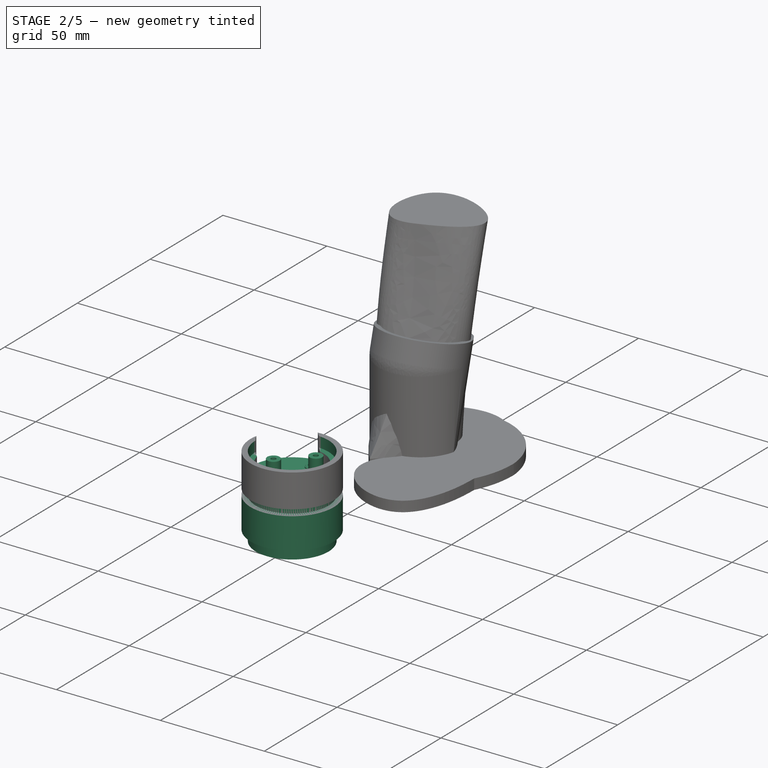
[diagram: stage 2 of 5 — iso view after this stage's code; geometry added in this stage tinted green]
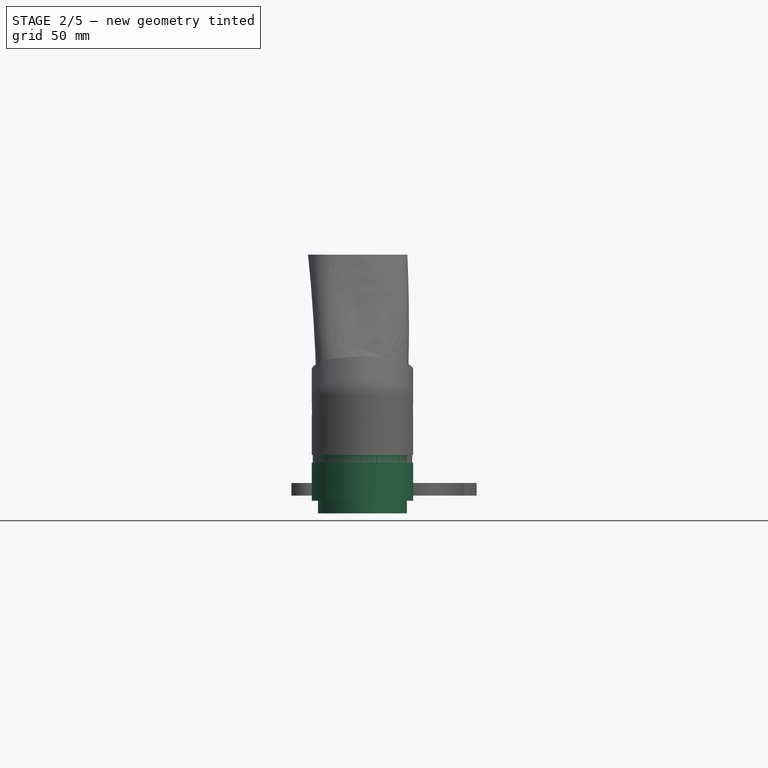
[diagram: stage 2 of 5 — front view after this stage's code; geometry added in this stage tinted green]
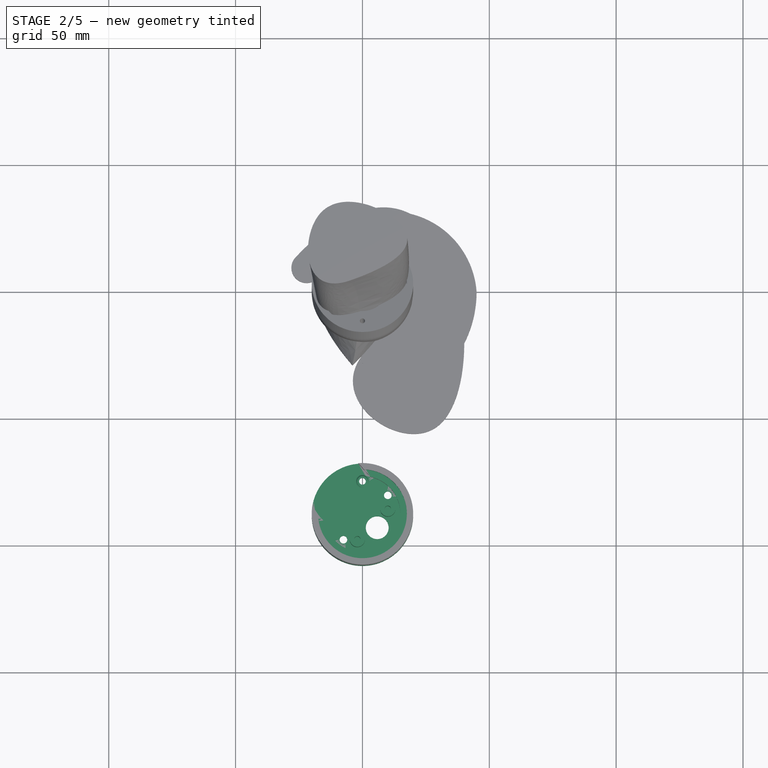
[diagram: stage 2 of 5 — top view after this stage's code; geometry added in this stage tinted green]
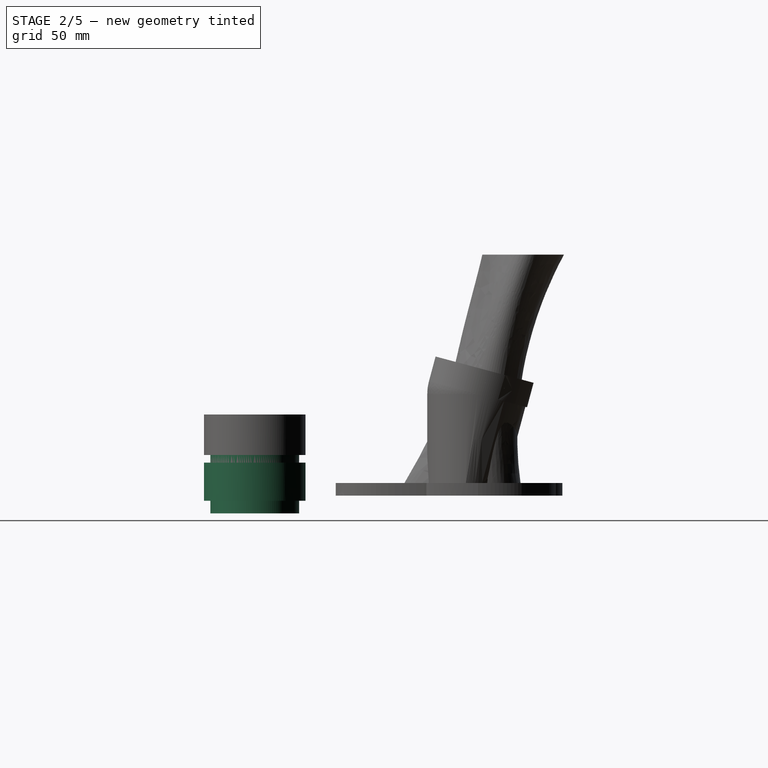
[diagram: stage 2 of 5 — right view after this stage's code; geometry added in this stage tinted green]
FEATURE [Sketcher::SketchObject] Sketch008
  ArcFitTolerance = 0
  ExternalGeometry = -> [Pad002]
  FullyConstrained = true
  MakeInternals = false
  MapMode = 5
  Placement = pos=(0,0,47) rot=(0,0,1;0rad)
  sketch-geometry (4):
    g0: ArcOfCircle CenterX=0 CenterY=0 CenterZ=0 NormalX=0 NormalY=0 NormalZ=1 AngleXU=0 Radius=20 StartAngle=3.14159 EndAngle=6.28319
    g1: ArcOfCircle CenterX=0 CenterY=0 CenterZ=0 NormalX=0 NormalY=0 NormalZ=1 AngleXU=0 Radius=10 StartAngle=3.14159 EndAngle=6.28319
    g2: LineSegment StartX=-20 StartY=2.4e-15 StartZ=0 EndX=-10 EndY=4.9795e-12 EndZ=0
    g3: LineSegment StartX=10 StartY=3.9411e-12 StartZ=0 EndX=20 EndY=0 EndZ=0
  constraints (12):
    c: Coincident(g0,g-1)
    c: PointOnObject(g0,g-1)
    c: PointOnObject(g0,g-1)
    c: Coincident(g1,g0)
    c: PointOnObject(g1,g-1)
    c: PointOnObject(g1,g-1)
    c: Coincident(g2,g0)
    c: Coincident(g2,g1)
    c: Coincident(g3,g1)
    c: Coincident(g3,g0)
    c: PointOnObject(g0,g-3)
    c: PointOnObject(g1,g-4)
FEATURE [Sketcher::SketchObject] Sketch015
  ArcFitTolerance = 0
  AttachmentSupport = -> [XY_Plane002]
  FullyConstrained = true
  MakeInternals = false
  MapMode = 5
  sketch-geometry (2):
    g0: Circle CenterX=0 CenterY=-88 CenterZ=0 NormalX=0 NormalY=0 NormalZ=1 AngleXU=0 Radius=17.5
    g1: Circle CenterX=0 CenterY=-88 CenterZ=0 NormalX=0 NormalY=0 NormalZ=1 AngleXU=0 Radius=15
  constraints (5):
    c: PointOnObject(g0,g-2)
    c: Diameter(g0) = 35
    c: Coincident(g1,g0)
    c: Diameter(g1) = 30
    c: DistanceY(g0,g-1) = 88
FEATURE [PartDesign::Pad] Pad004
  Direction = (0,0,1)
  Length = 5
  Length2 = 10
  Profile = -> Sketch015
  ReferenceAxis = -> Sketch015 [N_Axis]
  Suppressed = false
  Type = 0
FEATURE [Sketcher::SketchObject] Sketch016
  ArcFitTolerance = 0
  AttachmentSupport = -> [Pad004]
  FullyConstrained = true
  MakeInternals = false
  MapMode = 5
  Placement = pos=(0,0,5) rot=(0,0,1;0rad)
  sketch-geometry (2):
    g0: Circle CenterX=0 CenterY=-88 CenterZ=0 NormalX=0 NormalY=0 NormalZ=1 AngleXU=0 Radius=20
    g1: Circle CenterX=0 CenterY=-88 CenterZ=0 NormalX=0 NormalY=0 NormalZ=1 AngleXU=0 Radius=15
  constraints (5):
    c: PointOnObject(g0,g-2)
    c: DistanceY(g0,g-1) = 88
    c: Coincident(g1,g0)
    c: Diameter(g1) = 30
    c: Diameter(g0) = 40
FEATURE [PartDesign::Pad] Pad005
  BaseFeature = -> Pad004
  Direction = (0,0,1)
  Length = 5
  Length2 = 10
  Profile = -> Sketch016
  ReferenceAxis = -> Sketch016 [N_Axis]
  Suppressed = false
  Type = 0
FEATURE [Sketcher::SketchObject] Sketch017
  ArcFitTolerance = 0
  AttachmentSupport = -> [Pad005]
  FullyConstrained = true
  MakeInternals = false
  MapMode = 5
  Placement = pos=(0,0,10) rot=(0,0,1;0rad)
  sketch-geometry (4):
    g0: ArcOfCircle CenterX=0 CenterY=-88 CenterZ=0 NormalX=0 NormalY=0 NormalZ=1 AngleXU=0 Radius=20 StartAngle=2.96969 EndAngle=7.93407
    g1: ArcOfCircle CenterX=0 CenterY=-88 CenterZ=0 NormalX=0 NormalY=0 NormalZ=1 AngleXU=0 Radius=15 StartAngle=3.36406 EndAngle=7.64461
    g2: ArcOfCircle CenterX=0 CenterY=-75 CenterZ=0 NormalX=0 NormalY=0 NormalZ=1 AngleXU=0 Radius=21.91 StartAngle=3.59406 EndAngle=3.98121
    g3: LineSegment StartX=-1.6 StartY=-68.0641 StartZ=0 EndX=3.11767 EndY=-73.3276 EndZ=0
  constraints (14):
    c: PointOnObject(g0,g-2)
    c: Coincident(g1,g0)
    c: PointOnObject(g2,g-2)
    c: Diameter(g1) = 30
    c: Diameter(g0) = 40
    c: DistanceY(g0,g-1) = 88
    c: DistanceY(g2,g-1) = 75
    c: Angle(g3) = -0.840027
    c: Coincident(g0,g2)
    c: Coincident(g1,g2)
    c: Coincident(g3,g0)
    c: Coincident(g3,g1)
    c: Diameter(g2) = 43.82
    c: DistanceX(g0,g2) = 1.6
FEATURE [PartDesign::Pad] Pad006
  BaseFeature = -> Pad005
  Direction = (0,0,1)
  Length = 10
  Length2 = 10
  Profile = -> Sketch017
  ReferenceAxis = -> Sketch017 [N_Axis]
  Suppressed = false
  Type = 0
FEATURE [Sketcher::SketchObject] Sketch041
  ArcFitTolerance = 0
  AttachmentSupport = -> [Pocket015]
  FullyConstrained = true
  MakeInternals = false
  MapMode = 5
  Placement = pos=(0,0,15) rot=(1,0,0;3.14159rad)
  sketch-geometry (1):
    g0: Circle CenterX=0 CenterY=88 CenterZ=0 NormalX=0 NormalY=0 NormalZ=1 AngleXU=0 Radius=15
  constraints (3):
    c: PointOnObject(g0,g-2)
    c: Diameter(g0) = 30
    c: DistanceY(g-1,g0) = 88
FEATURE [PartDesign::Pad] Pad019
  BaseFeature = -> Pocket015
  Direction = (0,0,-1)
  Length = 12
  Length2 = 10
  Placement = pos=(0,0,15) rot=(0,0,1;0rad)
  Profile = -> Sketch041
  ReferenceAxis = -> Sketch041 [N_Axis]
  Reversed = true
  Suppressed = false
  Type = 0
FEATURE [PartDesign::Pocket] Pocket016
  BaseFeature = -> Pad019
  Direction = (0,0,1)
  Length = 8
  Length2 = 5
  Placement = pos=(0,0,15) rot=(0,0,1;0rad)
  Profile = -> Pad019 [Face11]
  Suppressed = false
  Type = 0
FEATURE [Sketcher::SketchObject] Sketch042
  ArcFitTolerance = 0
  AttachmentSupport = -> [Pocket016]
  FullyConstrained = true
  MakeInternals = false
  MapMode = 5
  Placement = pos=(0,0,27) rot=(0,0,1;0rad)
  sketch-geometry (1):
    g0: Circle CenterX=0 CenterY=-88 CenterZ=0 NormalX=0 NormalY=0 NormalZ=1 AngleXU=0 Radius=20
  constraints (3):
    c: PointOnObject(g0,g-2)
    c: Diameter(g0) = 40
    c: DistanceY(g0,g-1) = 88
FEATURE [PartDesign::Pad] Pad020
  BaseFeature = -> Pocket016
  Direction = (0,0,1)
  Length = 4
  Length2 = 10
  Placement = pos=(0,0,15) rot=(0,0,1;0rad)
  Profile = -> Sketch042
  ReferenceAxis = -> Sketch042 [N_Axis]
  Reversed = true
  Suppressed = false
  Type = 0
FEATURE [Sketcher::SketchObject] Sketch043
  ArcFitTolerance = 0
  AttachmentSupport = -> [Pad020]
  FullyConstrained = true
  MakeInternals = false
  MapMode = 5
  Placement = pos=(0,0,23) rot=(1,0,0;3.14159rad)
  sketch-geometry (1):
    g0: Circle CenterX=0 CenterY=75 CenterZ=0 NormalX=0 NormalY=0 NormalZ=1 AngleXU=0 Radius=0.75
  constraints (3):
    c: PointOnObject(g0,g-2)
    c: Diameter(g0) = 1.5
    c: DistanceY(g-1,g0) = 75
FEATURE [PartDesign::Pocket] Pocket017
  BaseFeature = -> Pad020
  Direction = (0,0,1)
  Length = 5
  Length2 = 5
  Placement = pos=(0,0,15) rot=(0,0,1;0rad)
  Profile = -> Sketch043
  ReferenceAxis = -> Sketch043 [N_Axis]
  Suppressed = false
  Type = 0
FEATURE [Sketcher::SketchObject] Sketch044
  ArcFitTolerance = 0
  AttachmentSupport = -> [Pocket017]
  FullyConstrained = true
  MakeInternals = false
  MapMode = 5
  Placement = pos=(0,0,27) rot=(0,0,1;0rad)
  sketch-geometry (2):
    g0: Circle CenterX=0 CenterY=-75 CenterZ=0 NormalX=0 NormalY=0 NormalZ=1 AngleXU=0 Radius=2.5
    g1: Circle CenterX=0 CenterY=-75 CenterZ=0 NormalX=0 NormalY=0 NormalZ=1 AngleXU=0 Radius=0.775
  constraints (5):
    c: PointOnObject(g0,g-2)
    c: Diameter(g0) = 5
    c: Coincident(g1,g0)
    c: Diameter(g1) = 1.55
    c: DistanceY(g0,g-1) = 75
FEATURE [PartDesign::Pad] Pad021
  BaseFeature = -> Pocket017
  Direction = (0,0,1)
  Length = 1
  Length2 = 10
  Placement = pos=(0,0,15) rot=(0,0,1;0rad)
  Profile = -> Sketch044
  ReferenceAxis = -> Sketch044 [N_Axis]
  Suppressed = false
  Type = 0
FEATURE [PartDesign::Chamfer] Chamfer002
  Angle = 45
  Base = -> Pad021 [Edge54]
  BaseFeature = -> Pad021
  ChamferType = 0
  FlipDirection = false
  Placement = pos=(0,0,15) rot=(0,0,1;0rad)
  Size = 0.5
  Size2 = 1
  SupportTransform = false
  Suppressed = false
  UseAllEdges = false
FEATURE [Sketcher::SketchObject] Sketch045
  ArcFitTolerance = 0
  AttachmentSupport = -> [Chamfer002]
  FullyConstrained = true
  MakeInternals = false
  MapMode = 5
  Placement = pos=(0,0,27) rot=(0,0,1;0rad)
  sketch-geometry (3):
    g0: GeomPoint [constr] X=0 Y=-88 Z=0
    g1: Circle CenterX=10 CenterY=-80.5 CenterZ=0 NormalX=0 NormalY=0 NormalZ=1 AngleXU=0 Radius=1.5
    g2: Circle CenterX=-7.5 CenterY=-98 CenterZ=0 NormalX=0 NormalY=0 NormalZ=1 AngleXU=0 Radius=1.5
  constraints (8):
    c: PointOnObject(g0,g-2)
    c: DistanceY(g0,g-1) = 88
    c: DistanceY(g0,g1) = 7.5
    c: DistanceX(g0,g1) = 10
    c: Diameter(g1) = 3
    c: Equal(g1,g2)
    c: DistanceY(g2,g0) = 10
    c: DistanceX(g2,g0) = 7.5
FEATURE [PartDesign::Pocket] Pocket018
  BaseFeature = -> Chamfer002
  Direction = (0,0,-1)
  Length = 5
  Length2 = 5
  Placement = pos=(0,0,15) rot=(0,0,1;0rad)
  Profile = -> Sketch045
  ReferenceAxis = -> Sketch045 [N_Axis]
  Suppressed = false
  Type = 0
FEATURE [Sketcher::SketchObject] Sketch046
  ArcFitTolerance = 0
  AttachmentSupport = -> [Pocket018]
  FullyConstrained = true
  MakeInternals = false
  MapMode = 5
  Placement = pos=(0,0,39) rot=(0,0,1;0rad)
  sketch-geometry (1):
    g0: Circle CenterX=0 CenterY=-88 CenterZ=0 NormalX=0 NormalY=0 NormalZ=1 AngleXU=0 Radius=17.5
  constraints (3):
    c: PointOnObject(g0,g-2)
    c: Diameter(g0) = 35
    c: DistanceY(g0,g-1) = 88
FEATURE [PartDesign::Pocket] Pocket019
  BaseFeature = -> Pocket018
  Direction = (0,0,-1)
  Length = 5
  Length2 = 5
  Placement = pos=(0,0,15) rot=(0,0,1;0rad)
  Profile = -> Sketch046
  ReferenceAxis = -> Sketch046 [N_Axis]
  Suppressed = false
  Type = 0
FEATURE [Sketcher::SketchObject] Sketch047
  ArcFitTolerance = 0
  AttachmentSupport = -> [Pocket019]
  FullyConstrained = true
  MakeInternals = false
  MapMode = 5
  Placement = pos=(0,0,27) rot=(0,0,1;0rad)
  sketch-geometry (5):
    g0: Circle CenterX=10 CenterY=-86 CenterZ=0 NormalX=0 NormalY=0 NormalZ=1 AngleXU=0 Radius=3
    g1: Circle CenterX=-2 CenterY=-98 CenterZ=0 NormalX=0 NormalY=0 NormalZ=1 AngleXU=0 Radius=3
    g2: GeomPoint [constr] X=0 Y=-88 Z=0
    g3: Circle CenterX=10 CenterY=-86 CenterZ=0 NormalX=0 NormalY=0 NormalZ=1 AngleXU=0 Radius=1.2
    g4: Circle CenterX=-2 CenterY=-98 CenterZ=0 NormalX=0 NormalY=0 NormalZ=1 AngleXU=0 Radius=1.2
  constraints (12):
    c: Diameter(g0) = 6
    c: Equal(g0,g1)
    c: PointOnObject(g2,g-2)
    c: DistanceY(g2,g-1) = 88
    c: DistanceY(g2,g0) = 2
    c: DistanceX(g2,g0) = 10
    c: DistanceX(g1,g2) = 2
    c: DistanceY(g1,g2) = 10
    c: Coincident(g3,g0)
    c: Coincident(g4,g1)
    c: Diameter(g4) = 2.4
    c: Equal(g4,g3)
FEATURE [PartDesign::Pad] Pad022
  BaseFeature = -> Pocket019
  Direction = (0,0,1)
  Length = 12
  Length2 = 10
  Placement = pos=(0,0,15) rot=(0,0,1;0rad)
  Profile = -> Sketch047
  ReferenceAxis = -> Sketch047 [N_Axis]
  Suppressed = false
  Type = 0
FEATURE [Sketcher::SketchObject] Sketch048
  ArcFitTolerance = 0
  AttachmentSupport = -> [Pad022]
  FullyConstrained = false
  MakeInternals = false
  MapMode = 5
  Placement = pos=(0,0,27) rot=(0,0,1;0rad)
  sketch-geometry (1):
    g0: Circle CenterX=5.8232 CenterY=-93.2749 CenterZ=0 NormalX=0 NormalY=0 NormalZ=1 AngleXU=0 Radius=4.5
  constraints (1):
    c: Diameter(g0) = 9
FEATURE [PartDesign::Pocket] Pocket020
  BaseFeature = -> Pad022
  Direction = (0,0,-1)
  Length = 5
  Length2 = 5
  Placement = pos=(0,0,15) rot=(0,0,1;0rad)
  Profile = -> Sketch048
  ReferenceAxis = -> Sketch048 [N_Axis]
  Suppressed = false
  Type = 0
FEATURE [PartDesign::Pocket] Pocket050
  BaseFeature = -> Pocket020
  Direction = (0,0,1)
  Length = 3
  Length2 = 5
  Placement = pos=(0,0,15) rot=(0,0,1;0rad)
  Profile = -> Pocket020 [Face39,Face36]
  Suppressed = false
  Type = 0
FEATURE [PartDesign::Body] Body002  label="First_floor"
  AllowCompound = false
  Group = -> [Sketch015,Pad004,Sketch016,Pad005,Sketch017,Pad006,Sketch019,Pocket009,Sketch021,Pad009,Sketch024,Pocket010,Sketch025,Pad010,Pad011,Sketch026,Pad012,Chamfer,Pad049,Pad050,Sketch091,Pocket052,Sketch092,Pocket053,Sketch100,Pocket058,Sketch101,Pocket059]
  Origin = -> Origin002
  Tip = -> Pocket059
FEATURE [Sketcher::SketchObject] Sketch102
  ArcFitTolerance = 1e-06
  AttachmentSupport = -> [Pocket050]
  ExternalGeometry = -> [Pocket050]
  FullyConstrained = true
  MakeInternals = false
  MapMode = 5
  Placement = pos=(0,0,28) rot=(0,0,1;0rad)
  sketch-geometry (1):
    g0: Circle CenterX=0 CenterY=-75 CenterZ=0 NormalX=0 NormalY=0 NormalZ=1 AngleXU=0 Radius=1.325
  constraints (2):
    c: Diameter(g0) = 2.65
    c: Coincident(g0,g-3)
FEATURE [PartDesign::Pocket] Pocket060
  BaseFeature = -> Pocket050
  Direction = (0,0,-1)
  Length = 5
  Length2 = 5
  Placement = pos=(0,0,15) rot=(0,0,1;0rad)
  Profile = -> Sketch102
  ReferenceAxis = -> Sketch102 [N_Axis]
  Refine = true
  Suppressed = false
  Type = 1
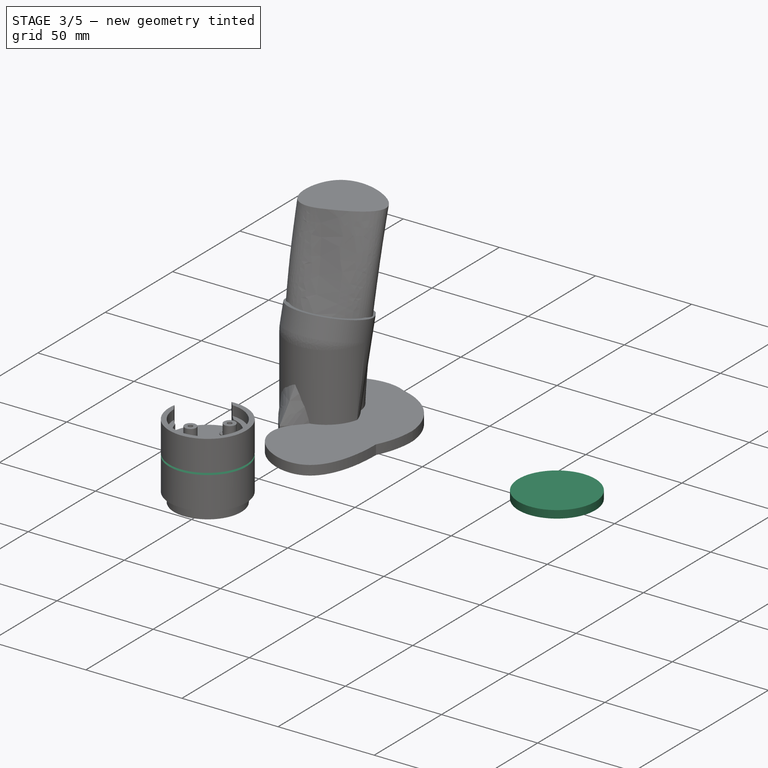
[diagram: stage 3 of 5 — iso view after this stage's code; geometry added in this stage tinted green]
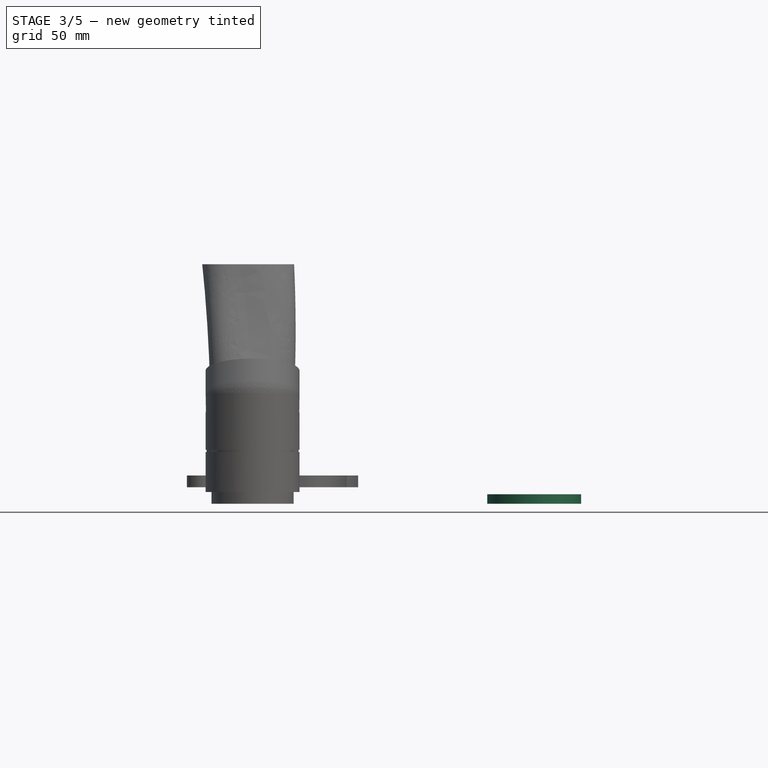
[diagram: stage 3 of 5 — front view after this stage's code; geometry added in this stage tinted green]
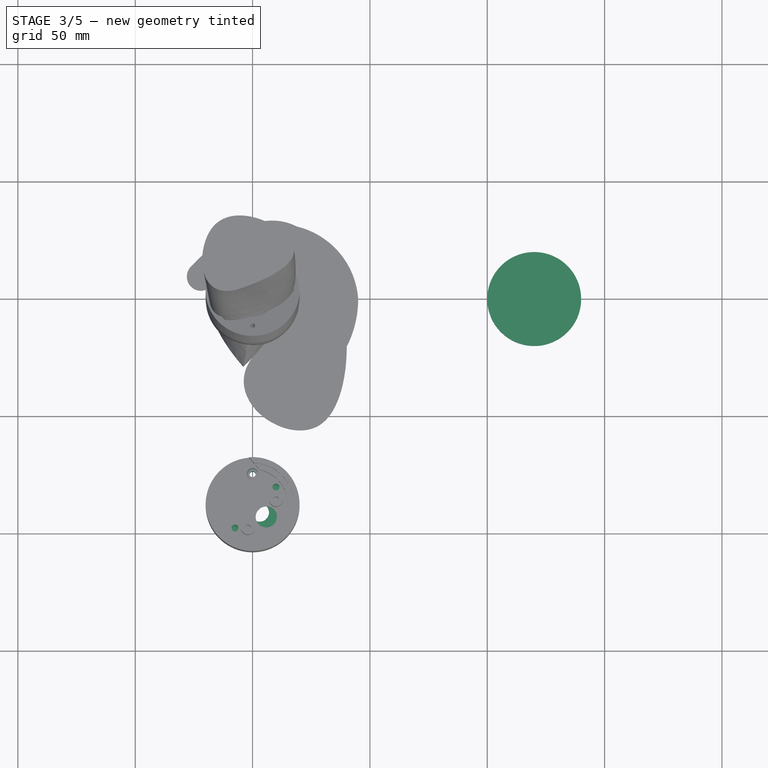
[diagram: stage 3 of 5 — top view after this stage's code; geometry added in this stage tinted green]
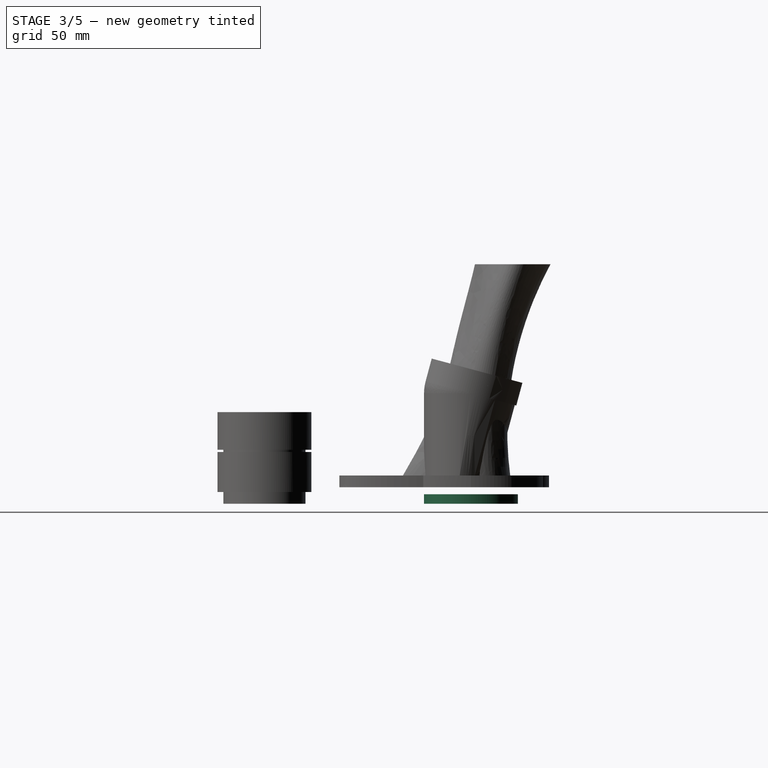
[diagram: stage 3 of 5 — right view after this stage's code; geometry added in this stage tinted green]
FEATURE [Sketcher::SketchObject] Sketch019
  ArcFitTolerance = 0
  FullyConstrained = true
  MakeInternals = false
  MapMode = 5
  Placement = pos=(0,0,10) rot=(0,0,1;0rad)
  sketch-geometry (1):
    g0: Circle CenterX=0 CenterY=-75 CenterZ=0 NormalX=0 NormalY=0 NormalZ=1 AngleXU=0 Radius=1.2
  constraints (3):
    c: PointOnObject(g0,g-2)
    c: Diameter(g0) = 2.4
    c: DistanceY(g0,g-1) = 75
FEATURE [PartDesign::Pocket] Pocket009
  BaseFeature = -> Pad006
  Direction = (0,0,-1)
  Length = 5
  Length2 = 5
  Profile = -> Sketch019
  ReferenceAxis = -> Sketch019 [N_Axis]
  Suppressed = false
  Type = 1
FEATURE [Sketcher::SketchObject] Sketch021
  ArcFitTolerance = 0
  FullyConstrained = true
  MakeInternals = false
  MapMode = 5
  Placement = pos=(0,0,10) rot=(1,0,0;3.14159rad)
  sketch-geometry (3):
    g0: Circle CenterX=0 CenterY=88 CenterZ=0 NormalX=0 NormalY=0 NormalZ=1 AngleXU=0 Radius=15
    g1: Circle CenterX=3 CenterY=91 CenterZ=0 NormalX=0 NormalY=0 NormalZ=1 AngleXU=0 Radius=4
    g2: Circle CenterX=0 CenterY=75 CenterZ=0 NormalX=0 NormalY=0 NormalZ=1 AngleXU=0 Radius=1.2
  constraints (9):
    c: Diameter(g0) = 30
    c: PointOnObject(g0,g-2)
    c: DistanceY(g-1,g0) = 88
    c: Diameter(g1) = 8
    c: DistanceY(g0,g1) = 3
    c: DistanceX(g0,g1) = 3
    c: PointOnObject(g2,g-2)
    c: Diameter(g2) = 2.4
    c: DistanceY(g-1,g2) = 75
FEATURE [PartDesign::Pad] Pad009
  BaseFeature = -> Pocket009
  Direction = (0,-1e-16,-1)
  Length = 10
  Length2 = 10
  Profile = -> Sketch021
  ReferenceAxis = -> Sketch021 [N_Axis]
  Suppressed = false
  Type = 0
FEATURE [Sketcher::SketchObject] Sketch024
  ArcFitTolerance = 0
  AttachmentSupport = -> [Pad009]
  FullyConstrained = true
  MakeInternals = false
  MapMode = 5
  Placement = pos=(0,0,20) rot=(0,0,1;0rad)
  sketch-geometry (1):
    g0: Circle CenterX=0 CenterY=-88 CenterZ=0 NormalX=0 NormalY=0 NormalZ=1 AngleXU=0 Radius=17.5
  constraints (3):
    c: PointOnObject(g0,g-2)
    c: Diameter(g0) = 35
    c: DistanceY(g0,g-1) = 88
FEATURE [PartDesign::Pocket] Pocket010
  BaseFeature = -> Pad009
  Direction = (0,0,-1)
  Length = 5
  Length2 = 5
  Profile = -> Sketch024
  ReferenceAxis = -> Sketch024 [N_Axis]
  Suppressed = false
  Type = 0
FEATURE [Sketcher::SketchObject] Sketch025
  ArcFitTolerance = 0
  AttachmentSupport = -> [Pocket010]
  FullyConstrained = true
  MakeInternals = false
  MapMode = 5
  Placement = pos=(0,0,10) rot=(0,0,1;0rad)
  sketch-geometry (5):
    g0: Circle CenterX=10 CenterY=-80.5 CenterZ=0 NormalX=0 NormalY=0 NormalZ=1 AngleXU=0 Radius=3.5
    g1: Circle CenterX=-7.5 CenterY=-98 CenterZ=0 NormalX=0 NormalY=0 NormalZ=1 AngleXU=0 Radius=3.5
    g2: GeomPoint [constr] X=0 Y=-88 Z=0
    g3: Circle CenterX=-7.5 CenterY=-98 CenterZ=0 NormalX=0 NormalY=0 NormalZ=1 AngleXU=0 Radius=1.2
    g4: Circle CenterX=10 CenterY=-80.5 CenterZ=0 NormalX=0 NormalY=0 NormalZ=1 AngleXU=0 Radius=1.2
  constraints (12):
    c: PointOnObject(g2,g-2)
    c: DistanceY(g2,g-1) = 88
    c: DistanceY(g2,g0) = 7.5
    c: DistanceX(g2,g0) = 10
    c: DistanceX(g1,g2) = 7.5
    c: DistanceY(g1,g2) = 10
    c: Diameter(g1) = 7
    c: Equal(g1,g0)
    c: Coincident(g3,g1)
    c: Diameter(g3) = 2.4
    c: Coincident(g4,g0)
    c: Equal(g3,g4)
FEATURE [PartDesign::Pad] Pad010
  BaseFeature = -> Pocket010
  Direction = (0,0,1)
  Length = 5
  Length2 = 10
  Profile = -> Sketch025
  ReferenceAxis = -> Sketch025 [N_Axis]
  Suppressed = false
  Type = 0
FEATURE [PartDesign::Pad] Pad011
  BaseFeature = -> Pad010
  Direction = (0,0,1)
  Length = 5
  Length2 = 10
  Profile = -> Pad010 [Face24,Face23]
  Suppressed = false
  Type = 0
FEATURE [Sketcher::SketchObject] Sketch026
  ArcFitTolerance = 0
  AttachmentSupport = -> [Pad011]
  FullyConstrained = true
  MakeInternals = false
  MapMode = 5
  Placement = pos=(0,0,10) rot=(0,0,1;0rad)
  sketch-geometry (2):
    g0: Circle CenterX=0 CenterY=-75 CenterZ=0 NormalX=0 NormalY=0 NormalZ=1 AngleXU=0 Radius=2.5
    g1: Circle CenterX=0 CenterY=-75 CenterZ=0 NormalX=0 NormalY=0 NormalZ=1 AngleXU=0 Radius=1.2
  constraints (5):
    c: PointOnObject(g0,g-2)
    c: Coincident(g1,g0)
    c: Diameter(g0) = 5
    c: Diameter(g1) = 2.4
    c: DistanceY(g0,g-1) = 75
FEATURE [PartDesign::Pad] Pad012
  BaseFeature = -> Pad011
  Direction = (0,0,1)
  Length = 1
  Length2 = 10
  Profile = -> Sketch026
  ReferenceAxis = -> Sketch026 [N_Axis]
  Suppressed = false
  Type = 0
FEATURE [PartDesign::Chamfer] Chamfer
  Angle = 45
  Base = -> Pad012 [Edge46]
  BaseFeature = -> Pad012
  ChamferType = 0
  FlipDirection = false
  Size = 0.5
  Size2 = 1
  SupportTransform = false
  Suppressed = false
  UseAllEdges = false
FEATURE [Sketcher::SketchObject] Sketch074
  ArcFitTolerance = 0
  AttachmentSupport = -> [XY_Plane011]
  FullyConstrained = true
  MakeInternals = false
  MapMode = 5
  sketch-geometry (1):
    g0: Circle CenterX=120 CenterY=0 CenterZ=0 NormalX=0 NormalY=0 NormalZ=1 AngleXU=0 Radius=20
  constraints (3):
    c: PointOnObject(g0,g-1)
    c: DistanceX(g-1,g0) = 120
    c: Diameter(g0) = 40
FEATURE [PartDesign::Pad] Pad040
  Direction = (0,0,1)
  Length = 4
  Length2 = 10
  Profile = -> Sketch074
  ReferenceAxis = -> Sketch074 [N_Axis]
  Suppressed = false
  Type = 0
FEATURE [PartDesign::Pad] Pad049
  BaseFeature = -> Chamfer
  Direction = (0,0,1)
  Length = 2
  Length2 = 10
  Profile = -> Chamfer [Face17,Face29,Face28,Face23]
  Suppressed = false
  Type = 0
FEATURE [PartDesign::Pad] Pad050
  BaseFeature = -> Pad049
  Direction = (0,0,1)
  Length = 2
  Length2 = 10
  Profile = -> Pad049 [Face35,Face37]
  Suppressed = false
  Type = 0
FEATURE [Sketcher::SketchObject] Sketch091
  ArcFitTolerance = 0
  AttachmentSupport = -> [Pad050]
  ExternalGeometry = -> [Pad050]
  FullyConstrained = true
  MakeInternals = false
  MapMode = 5
  Placement = pos=(0,0,10) rot=(0,0,1;0rad)
  sketch-geometry (4):
    g0: Circle [constr] CenterX=0 CenterY=-88 CenterZ=0 NormalX=0 NormalY=0 NormalZ=1 AngleXU=0 Radius=14
    g1: Circle CenterX=0 CenterY=-102 CenterZ=0 NormalX=0 NormalY=0 NormalZ=1 AngleXU=0 Radius=1.5
    g2: LineSegment [constr] StartX=0 StartY=-88 StartZ=0 EndX=14 EndY=-88 EndZ=0
    g3: Circle CenterX=14 CenterY=-88 CenterZ=0 NormalX=0 NormalY=0 NormalZ=1 AngleXU=0 Radius=1.5
  constraints (10):
    c: Coincident(g0,g-3)
    c: Diameter(g0) = 28
    c: PointOnObject(g1,g-2)
    c: Coincident(g2,g0)
    c: PointOnObject(g2,g0)
    c: Horizontal(g2)
    c: Coincident(g3,g2)
    c: Diameter(g3) = 3
    c: PointOnObject(g1,g0)
    c: Equal(g3,g1)
FEATURE [PartDesign::Pocket] Pocket052
  BaseFeature = -> Pad050
  Direction = (0,0,-1)
  Length = 5
  Length2 = 5
  Profile = -> Sketch091
  ReferenceAxis = -> Sketch091 [N_Axis]
  Suppressed = false
  Type = 1
FEATURE [Sketcher::SketchObject] Sketch092
  ArcFitTolerance = 0
  AttachmentSupport = -> [Pocket052]
  ExternalGeometry = -> [Pocket052]
  FullyConstrained = true
  MakeInternals = false
  MapMode = 5
  Placement = pos=(0,0,10) rot=(0,0,1;0rad)
  sketch-geometry (2):
    g0: Circle CenterX=0 CenterY=-102 CenterZ=0 NormalX=0 NormalY=0 NormalZ=1 AngleXU=0 Radius=2.75
    g1: Circle CenterX=14 CenterY=-88 CenterZ=0 NormalX=0 NormalY=0 NormalZ=1 AngleXU=0 Radius=2.75
  constraints (4):
    c: Coincident(g0,g-4)
    c: Diameter(g0) = 5.5
    c: Coincident(g1,g-3)
    c: Equal(g1,g0)
FEATURE [PartDesign::Pocket] Pocket053
  BaseFeature = -> Pocket052
  Direction = (0,0,-1)
  Length = 5
  Length2 = 10
  Profile = -> Sketch092
  ReferenceAxis = -> Sketch092 [N_Axis]
  Suppressed = false
  Type = 4
FEATURE [Sketcher::SketchObject] Sketch100
  ArcFitTolerance = 1e-06
  AttachmentSupport = -> [Pocket053]
  ExternalGeometry = -> [Pocket053]
  FullyConstrained = true
  MakeInternals = false
  MapMode = 5
  Placement = pos=(0,0,11) rot=(0,0,1;0rad)
  sketch-geometry (1):
    g0: Circle CenterX=0 CenterY=-75 CenterZ=0 NormalX=0 NormalY=0 NormalZ=1 AngleXU=0 Radius=1.325
  constraints (2):
    c: Coincident(g0,g-3)
    c: Diameter(g0) = 2.65
FEATURE [PartDesign::Pocket] Pocket058
  BaseFeature = -> Pocket053
  Direction = (0,0,-1)
  Length = 5
  Length2 = 5
  Profile = -> Sketch100
  ReferenceAxis = -> Sketch100 [N_Axis]
  Refine = true
  Suppressed = false
  Type = 1
FEATURE [Sketcher::SketchObject] Sketch101
  ArcFitTolerance = 1e-06
  AttachmentSupport = -> [Pocket058]
  ExternalGeometry = -> [Pocket058]
  FullyConstrained = true
  MakeInternals = false
  MapMode = 5
  Placement = pos=(0,0,0) rot=(1,0,0;3.14159rad)
  sketch-geometry (1):
    g0: Circle CenterX=0 CenterY=75 CenterZ=0 NormalX=0 NormalY=0 NormalZ=1 AngleXU=0 Radius=2.5
  constraints (2):
    c: Diameter(g0) = 5
    c: Coincident(g0,g-3)
FEATURE [PartDesign::Pocket] Pocket059
  BaseFeature = -> Pocket058
  Direction = (0,0,1)
  Length = 2.5
  Length2 = 5
  Profile = -> Sketch101
  ReferenceAxis = -> Sketch101 [N_Axis]
  Refine = true
  Suppressed = false
  Type = 0
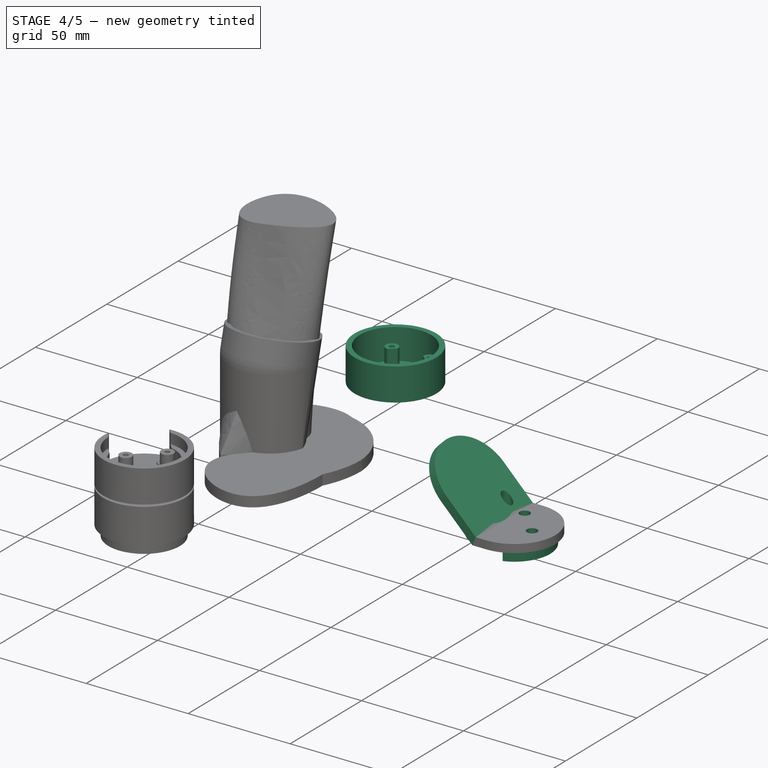
[diagram: stage 4 of 5 — iso view after this stage's code; geometry added in this stage tinted green]
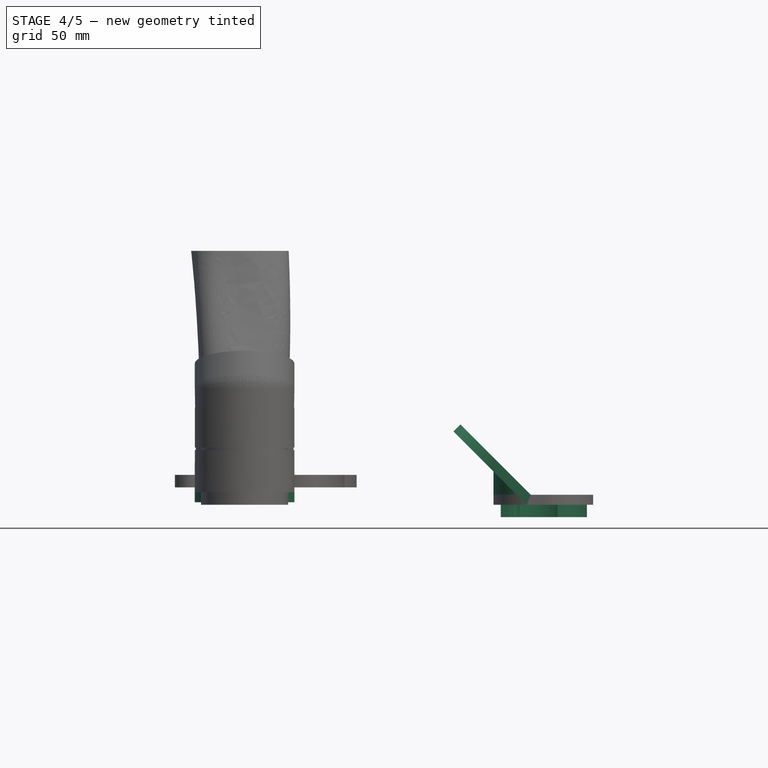
[diagram: stage 4 of 5 — front view after this stage's code; geometry added in this stage tinted green]
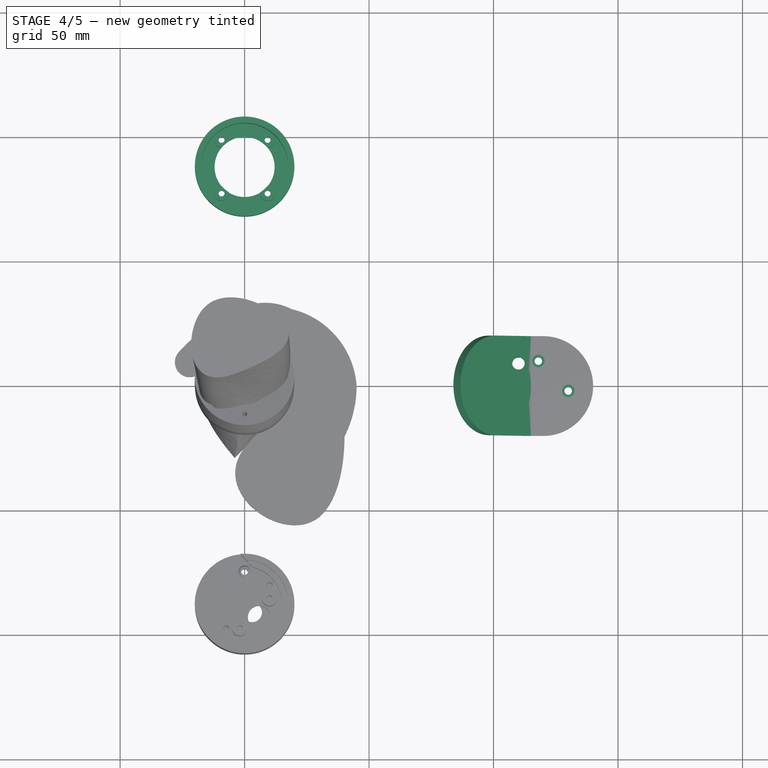
[diagram: stage 4 of 5 — top view after this stage's code; geometry added in this stage tinted green]
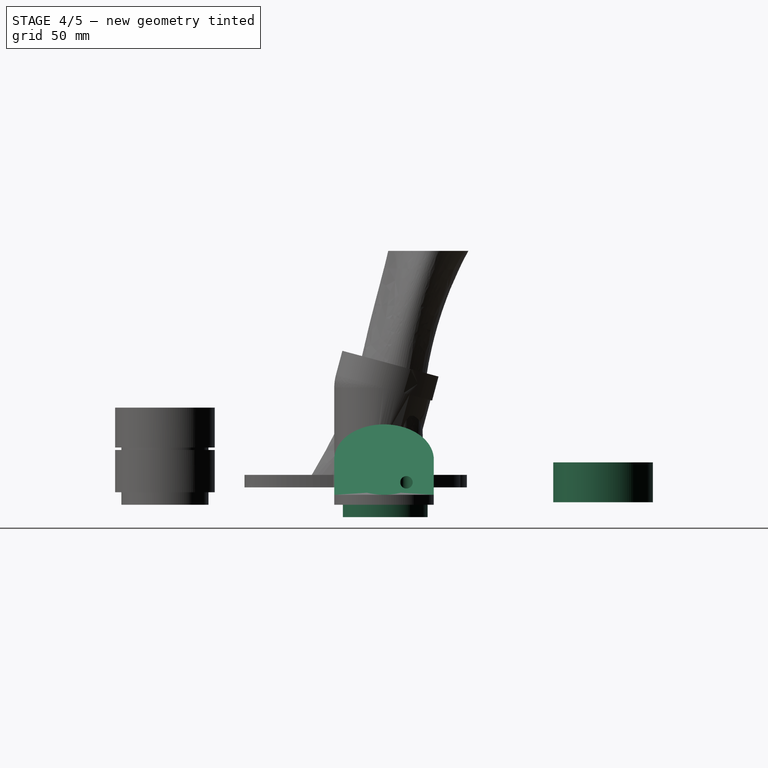
[diagram: stage 4 of 5 — right view after this stage's code; geometry added in this stage tinted green]
FEATURE [PartDesign::Body] Body003  label="button"
  AllowCompound = false
  Group = -> [Sketch020,Pad008,Pocket011,Sketch027,Pad013,Chamfer001]
  Origin = -> Origin003
  Tip = -> Chamfer001
FEATURE [Sketcher::SketchObject] Sketch049
  ArcFitTolerance = 0
  AttachmentSupport = -> [XY_Plane007]
  FullyConstrained = true
  MakeInternals = false
  MapMode = 5
  sketch-geometry (2):
    g0: Circle CenterX=0 CenterY=88 CenterZ=0 NormalX=0 NormalY=0 NormalZ=1 AngleXU=0 Radius=12.05
    g1: Circle CenterX=0 CenterY=88 CenterZ=0 NormalX=0 NormalY=0 NormalZ=1 AngleXU=0 Radius=20
  constraints (5):
    c: PointOnObject(g0,g-2)
    c: Diameter(g0) = 24.1
    c: Coincident(g1,g0)
    c: Diameter(g1) = 40
    c: DistanceY(g-1,g0) = 88
FEATURE [PartDesign::Pad] Pad023
  Direction = (0,0,1)
  Length = 20
  Length2 = 10
  Profile = -> Sketch049
  ReferenceAxis = -> Sketch049 [N_Axis]
  Suppressed = false
  Type = 0
FEATURE [Sketcher::SketchObject] Sketch050
  ArcFitTolerance = 0
  AttachmentSupport = -> [Pad023]
  FullyConstrained = true
  MakeInternals = false
  MapMode = 5
  Placement = pos=(0,0,20) rot=(0,0,1;0rad)
  sketch-geometry (1):
    g0: Circle CenterX=0 CenterY=88 CenterZ=0 NormalX=0 NormalY=0 NormalZ=1 AngleXU=0 Radius=17.5
  constraints (3):
    c: PointOnObject(g0,g-2)
    c: DistanceY(g-1,g0) = 88
    c: Diameter(g0) = 35
FEATURE [PartDesign::Pocket] Pocket021
  BaseFeature = -> Pad023
  Direction = (0,0,-1)
  Length = 18
  Length2 = 5
  Profile = -> Sketch050
  ReferenceAxis = -> Sketch050 [N_Axis]
  Suppressed = false
  Type = 0
FEATURE [Sketcher::SketchObject] Sketch051
  ArcFitTolerance = 0
  AttachmentSupport = -> [Pocket021]
  FullyConstrained = true
  MakeInternals = false
  MapMode = 5
  Placement = pos=(0,0,2) rot=(0,0,1;0rad)
  sketch-geometry (9):
    g0: LineSegment [constr] StartX=-9.25 StartY=98.75 StartZ=0 EndX=9.25 EndY=98.75 EndZ=0
    g1: LineSegment [constr] StartX=9.25 StartY=98.75 StartZ=0 EndX=9.25 EndY=77.25 EndZ=0
    g2: LineSegment [constr] StartX=9.25 StartY=77.25 StartZ=0 EndX=-9.25 EndY=77.25 EndZ=0
    g3: LineSegment [constr] StartX=-9.25 StartY=77.25 StartZ=0 EndX=-9.25 EndY=98.75 EndZ=0
    g4: GeomPoint [constr] X=0 Y=88 Z=0
    g5: Circle CenterX=9.25 CenterY=98.75 CenterZ=0 NormalX=0 NormalY=0 NormalZ=1 AngleXU=0 Radius=1.2
    g6: Circle CenterX=-9.25 CenterY=98.75 CenterZ=0 NormalX=0 NormalY=0 NormalZ=1 AngleXU=0 Radius=1.2
    g7: Circle CenterX=-9.25 CenterY=77.25 CenterZ=0 NormalX=0 NormalY=0 NormalZ=1 AngleXU=0 Radius=1.2
    g8: Circle CenterX=9.25 CenterY=77.25 CenterZ=0 NormalX=0 NormalY=0 NormalZ=1 AngleXU=0 Radius=1.2
  constraints (21):
    c: Coincident(g0,g1)
    c: Coincident(g1,g2)
    c: Coincident(g2,g3)
    c: Coincident(g3,g0)
    c: Horizontal(g0)
    c: Horizontal(g2)
    c: Vertical(g1)
    c: Vertical(g3)
    c: DistanceX(g0,g0) = 18.5
    c: PointOnObject(g4,g-2)
    c: DistanceY(g-1,g4) = 88
    c: Symmetric(g0,g2,g4)
    c: DistanceY(g3,g3) = 21.5
    c: Coincident(g5,g0)
    c: Diameter(g5) = 2.4
    c: Coincident(g6,g0)
    c: Coincident(g7,g2)
    c: Coincident(g8,g1)
    c: Equal(g5,g6)
    c: Equal(g6,g7)
    c: Equal(g5,g8)
FEATURE [PartDesign::Pocket] Pocket022
  BaseFeature = -> Pocket021
  Direction = (0,0,-1)
  Length = 5
  Length2 = 5
  Profile = -> Sketch051
  ReferenceAxis = -> Sketch051 [N_Axis]
  Suppressed = false
  Type = 0
FEATURE [Sketcher::SketchObject] Sketch054
  ArcFitTolerance = 0
  AttachmentSupport = -> [Pocket022]
  FullyConstrained = true
  MakeInternals = false
  MapMode = 5
  Placement = pos=(0,0,2) rot=(0,0,1;0rad)
  sketch-geometry (9):
    g0: Circle CenterX=-9.25 CenterY=98.75 CenterZ=0 NormalX=0 NormalY=0 NormalZ=1 AngleXU=0 Radius=3
    g1: Circle CenterX=9.25 CenterY=98.75 CenterZ=0 NormalX=0 NormalY=0 NormalZ=1 AngleXU=0 Radius=3
    g2: Circle CenterX=-9.25 CenterY=77.25 CenterZ=0 NormalX=0 NormalY=0 NormalZ=1 AngleXU=0 Radius=3
    g3: Circle CenterX=9.25 CenterY=77.25 CenterZ=0 NormalX=0 NormalY=0 NormalZ=1 AngleXU=0 Radius=3
    g4: LineSegment [constr] StartX=-9.25 StartY=98.75 StartZ=0 EndX=9.25 EndY=98.75 EndZ=0
    g5: LineSegment [constr] StartX=9.25 StartY=98.75 StartZ=0 EndX=9.25 EndY=77.25 EndZ=0
    g6: LineSegment [constr] StartX=9.25 StartY=77.25 StartZ=0 EndX=-9.25 EndY=77.25 EndZ=0
    g7: LineSegment [constr] StartX=-9.25 StartY=77.25 StartZ=0 EndX=-9.25 EndY=98.75 EndZ=0
    g8: GeomPoint [constr] X=0 Y=88 Z=0
  constraints (21):
    c: Coincident(g4,g5)
    c: Coincident(g5,g6)
    c: Coincident(g6,g7)
    c: Coincident(g7,g4)
    c: Horizontal(g4)
    c: Horizontal(g6)
    c: Vertical(g5)
    c: Vertical(g7)
    c: Coincident(g4,g0)
    c: Coincident(g5,g3)
    c: Coincident(g4,g1)
    c: Coincident(g2,g6)
    c: DistanceX(g4,g4) = 18.5
    c: DistanceY(g7,g7) = 21.5
    c: PointOnObject(g8,g-2)
    c: DistanceY(g-1,g8) = 88
    c: Symmetric(g0,g3,g8)
    c: Diameter(g1) = 6
    c: Equal(g1,g0)
    c: Equal(g0,g2)
    c: Equal(g2,g3)
FEATURE [PartDesign::Pad] Pad026
  BaseFeature = -> Pocket022
  Direction = (0,0,1)
  Length = 8
  Length2 = 10
  Profile = -> Sketch054
  ReferenceAxis = -> Sketch054 [N_Axis]
  Suppressed = false
  Type = 0
FEATURE [PartDesign::Pocket] Pocket023
  BaseFeature = -> Pad026
  Direction = (0,0,1)
  Length = 5
  Length2 = 5
  Profile = -> Pad026 [Face12,Face11,Face10,Face18,Face17,Face16,Face15,Face14]
  Suppressed = false
  Type = 1
FEATURE [PartDesign::Body] Body008  label="Dpad_button"
  AllowCompound = false
  Group = -> [Sketch052,Pad024,Sketch053,Pad025,Sketch055,Pad027,Draft,Draft001,Draft002,Sketch056,Pocket024]
  Origin = -> Origin008
  Tip = -> Pocket024
FEATURE [PartDesign::Pocket] Pocket029
  BaseFeature = -> Pocket023
  Direction = (0,0,-1)
  Length = 3
  Length2 = 5
  Profile = -> Pocket023 [Face3]
  Suppressed = false
  Type = 0
FEATURE [PartDesign::Pocket] Pocket030
  BaseFeature = -> Pocket029
  Direction = (0,0,1)
  Length = 1
  Length2 = 5
  Profile = -> Pocket029 [Face2]
  Suppressed = false
  Type = 0
FEATURE [Sketcher::SketchObject] Sketch075
  ArcFitTolerance = 0
  AttachmentSupport = -> [XZ_Plane011]
  FullyConstrained = true
  MakeInternals = false
  MapMode = 5
  Placement = pos=(0,0,0) rot=(1,0,0;1.5708rad)
  sketch-geometry (6):
    g0: LineSegment StartX=115 StartY=4 StartZ=0 EndX=120 EndY=4 EndZ=0
    g1: LineSegment StartX=120 StartY=4 StartZ=0 EndX=120 EndY=0 EndZ=0
    g2: LineSegment StartX=120 StartY=0 StartZ=0 EndX=113.343 EndY=0 EndZ=0
    g3: LineSegment StartX=115 StartY=4 StartZ=0 EndX=100.858 EndY=18.1421 EndZ=0
    g4: LineSegment StartX=113.343 StartY=0 StartZ=0 EndX=98.0294 EndY=15.3137 EndZ=0
    g5: LineSegment StartX=100.858 StartY=18.1421 StartZ=0 EndX=98.0294 EndY=15.3137 EndZ=0
  constraints (18):
    c: Coincident(g0,g1)
    c: Coincident(g1,g2)
    c: Horizontal(g0)
    c: Horizontal(g2)
    c: Vertical(g1)
    c: PointOnObject(g1,g-1)
    c: Coincident(g3,g0)
    c: Coincident(g4,g2)
    c: Coincident(g5,g3)
    c: Coincident(g5,g4)
    c: Parallel(g3,g4)
    c: Angle(g0,g3) = 2.35619
    c: Perpendicular(g3,g5)
    c: Distance(g5) = 4
    c: Distance(g1) = 4
    c: DistanceX(g-1,g1) = 120
    c: Distance(g3) = 20
    c: DistanceX(g0,g0) = 5
FEATURE [PartDesign::Pad] Pad041
  BaseFeature = -> Pad040
  Direction = (0,-1,2e-16)
  Length = 20
  Length2 = 20
  Profile = -> Sketch075
  ReferenceAxis = -> Sketch075 [N_Axis]
  Suppressed = false
  Type = 4
FEATURE [Sketcher::SketchObject] Sketch076
  ArcFitTolerance = 0
  AttachmentSupport = -> [Pad041]
  ExternalGeometry = -> [Pad041]
  FullyConstrained = true
  MakeInternals = false
  MapMode = 5
  Placement = pos=(59.5,1.35e-14,59.5) rot=(0.357407,0.357407,0.862856;1.71777rad)
  sketch-geometry (3):
    g0: LineSegment [constr] StartX=-20 StartY=-58.4889 StartZ=0 EndX=-1.07e-14 EndY=-58.4889 EndZ=0
    g1: LineSegment [constr] StartX=-1.07e-14 StartY=-58.4889 StartZ=0 EndX=20 EndY=-58.4889 EndZ=0
    g2: Circle CenterX=-1.07e-14 CenterY=-58.4889 CenterZ=0 NormalX=0 NormalY=0 NormalZ=1 AngleXU=0 Radius=20
  constraints (7):
    c: Coincident(g0,g-3)
    c: PointOnObject(g0,g-3)
    c: Coincident(g1,g0)
    c: Coincident(g1,g-3)
    c: Coincident(g2,g0)
    c: PointOnObject(g1,g2)
    c: Equal(g0,g1)
FEATURE [PartDesign::Pad] Pad042
  BaseFeature = -> Pad041
  Direction = (0.707107,0,0.707107)
  Length = 4
  Length2 = 10
  Profile = -> Sketch076
  ReferenceAxis = -> Sketch076 [N_Axis]
  Reversed = true
  Suppressed = false
  Type = 0
FEATURE [Sketcher::SketchObject] Sketch077
  ArcFitTolerance = 0
  AttachmentSupport = -> [Pad042]
  ExternalGeometry = -> [Pad042]
  FullyConstrained = true
  MakeInternals = false
  MapMode = 5
  Placement = pos=(0,0,0) rot=(1,0,0;3.14159rad)
  sketch-geometry (4):
    g0: GeomPoint [constr] X=120 Y=0 Z=0
    g1: Circle CenterX=110 CenterY=-9 CenterZ=0 NormalX=0 NormalY=0 NormalZ=1 AngleXU=0 Radius=2.5
    g2: Circle CenterX=130 CenterY=2 CenterZ=0 NormalX=0 NormalY=0 NormalZ=1 AngleXU=0 Radius=1.5
    g3: Circle CenterX=118 CenterY=-10 CenterZ=0 NormalX=0 NormalY=0 NormalZ=1 AngleXU=0 Radius=1.5
  constraints (11):
    c: PointOnObject(g0,g-3)
    c: PointOnObject(g0,g-1)
    c: DistanceY(g0,g1) = -9
    c: DistanceX(g1,g0) = 10
    c: Diameter(g1) = 5
    c: Diameter(g3) = 3
    c: Equal(g3,g2)
    c: DistanceY(g3,g0) = 10
    c: DistanceY(g0,g2) = 2
    c: DistanceX(g0,g2) = 10
    c: DistanceX(g3,g0) = 2
FEATURE [PartDesign::Pocket] Pocket040
  BaseFeature = -> Pad042
  Direction = (0,0,1)
  Length = 5
  Length2 = 5
  Profile = -> Sketch077
  ReferenceAxis = -> Sketch077 [N_Axis]
  Suppressed = false
  Type = 1
FEATURE [Sketcher::SketchObject] Sketch078
  ArcFitTolerance = 0
  AttachmentSupport = -> [Pocket040]
  ExternalGeometry = -> [Pocket040]
  FullyConstrained = true
  MakeInternals = false
  MapMode = 5
  Placement = pos=(0,0,0) rot=(1,0,0;3.14159rad)
  sketch-geometry (5):
    g0: GeomPoint [constr] X=120 Y=0 Z=0
    g1: ArcOfCircle CenterX=120 CenterY=0 CenterZ=0 NormalX=0 NormalY=0 NormalZ=1 AngleXU=0 Radius=17.5 StartAngle=3.35755 EndAngle=7.51919
    g2: ArcOfCircle CenterX=120 CenterY=0 CenterZ=0 NormalX=0 NormalY=0 NormalZ=1 AngleXU=0 Radius=15 StartAngle=3.39427 EndAngle=7.46058
    g3: LineSegment StartX=125.75 StartY=16.5284 StartZ=0 EndX=125.75 EndY=13.8542 EndZ=0
    g4: LineSegment StartX=102.907 StartY=-3.75 StartZ=0 EndX=105.476 EndY=-3.75 EndZ=0
  constraints (14):
    c: PointOnObject(g0,g-3)
    c: PointOnObject(g0,g-1)
    c: Coincident(g1,g0)
    c: Coincident(g2,g1)
    c: Coincident(g3,g1)
    c: Coincident(g3,g2)
    c: Vertical(g3)
    c: Coincident(g4,g1)
    c: Coincident(g4,g2)
    c: Horizontal(g4)
    c: Diameter(g2) = 30
    c: Diameter(g1) = 35
    c: DistanceY(g2,g1) = 3.75
    c: DistanceX(g1,g2) = 5.75
FEATURE [PartDesign::Pad] Pad043
  BaseFeature = -> Pocket040
  Direction = (0,0,-1)
  Length = 5
  Length2 = 10
  Profile = -> Sketch078
  ReferenceAxis = -> Sketch078 [N_Axis]
  Suppressed = false
  Type = 0
FEATURE [PartDesign::Pad] Pad044
  BaseFeature = -> Pad043
  Direction = (0,0,1)
  Length = 5
  Length2 = 10
  Profile = -> Pad043 [Face26]
  Suppressed = false
  Type = 0
FEATURE [PartDesign::Pad] Pad045
  BaseFeature = -> Pad044
  Direction = (0,0,1)
  Length = 5
  Length2 = 10
  Profile = -> Pad044 [Face35]
  Suppressed = false
  Type = 0
FEATURE [PartDesign::Pocket] Pocket041
  BaseFeature = -> Pad045
  Direction = (0,0,-1)
  Length = 5
  Length2 = 5
  Profile = -> Pad045 [Face23]
  Suppressed = false
  Type = 0
FEATURE [Sketcher::SketchObject] Sketch079
  ArcFitTolerance = 0
  AttachmentSupport = -> [Pocket041]
  ExternalGeometry = -> [Pocket041]
  FullyConstrained = true
  MakeInternals = false
  MapMode = 5
  Placement = pos=(0,0,4) rot=(0,0,1;0rad)
  sketch-geometry (3):
    g0: Circle CenterX=118 CenterY=10 CenterZ=0 NormalX=0 NormalY=0 NormalZ=1 AngleXU=0 Radius=2.5
    g1: Circle CenterX=130 CenterY=-2 CenterZ=0 NormalX=0 NormalY=0 NormalZ=1 AngleXU=0 Radius=2.5
    g2: GeomPoint [constr] X=120 Y=0 Z=0
  constraints (8):
    c: PointOnObject(g2,g-3)
    c: PointOnObject(g2,g-1)
    c: DistanceY(g2,g0) = 10
    c: DistanceY(g1,g2) = 2
    c: DistanceX(g0,g2) = 2
    c: DistanceX(g2,g1) = 10
    c: Diameter(g0) = 5
    c: Equal(g1,g0)
FEATURE [PartDesign::Pocket] Pocket042
  BaseFeature = -> Pocket041
  Direction = (0,0,-1)
  Length = 2.5
  Length2 = 5
  Profile = -> Sketch079
  ReferenceAxis = -> Sketch079 [N_Axis]
  Suppressed = false
  Type = 0
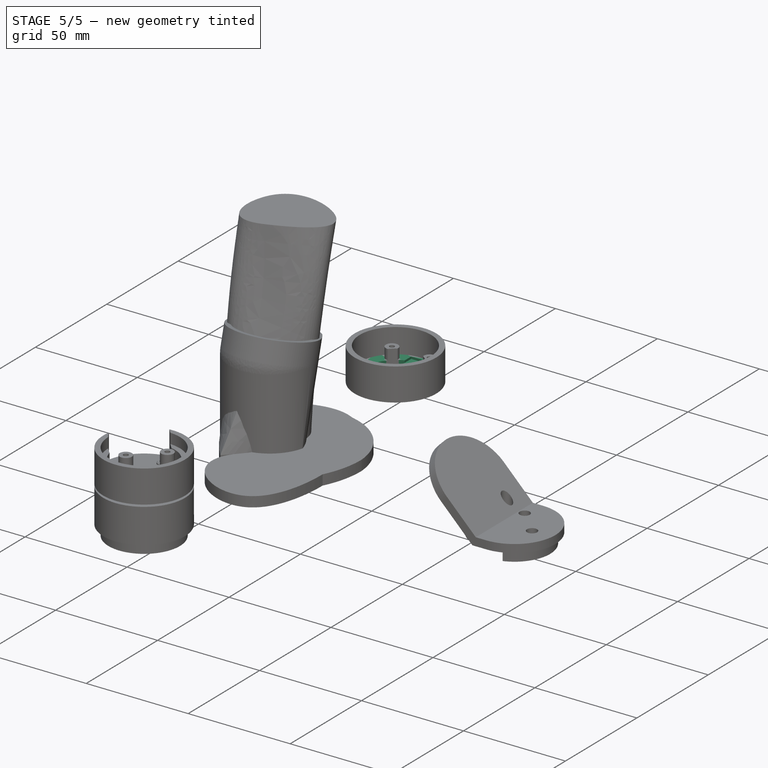
[diagram: stage 5 of 5 — iso view after this stage's code; geometry added in this stage tinted green]
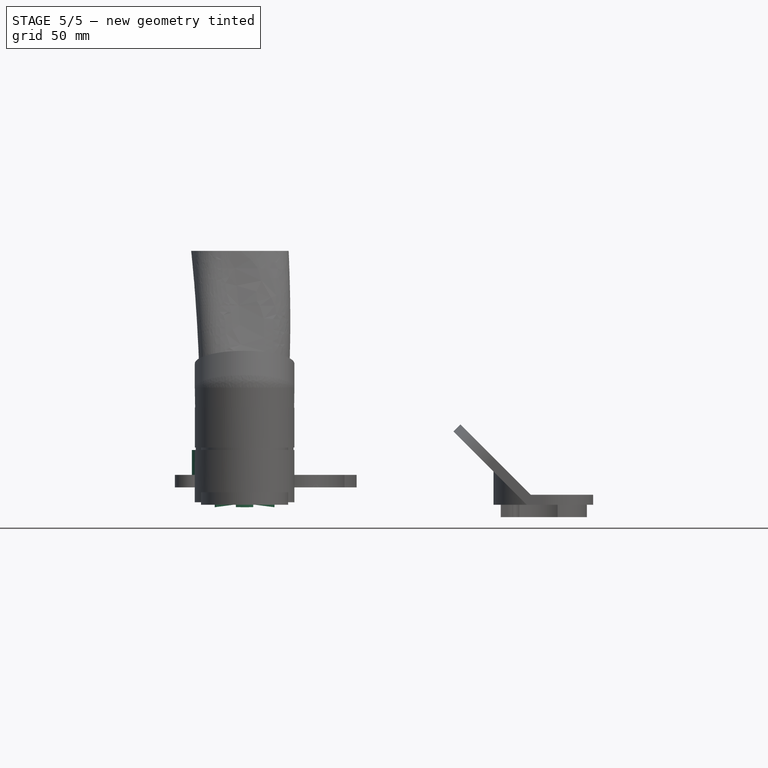
[diagram: stage 5 of 5 — front view after this stage's code; geometry added in this stage tinted green]
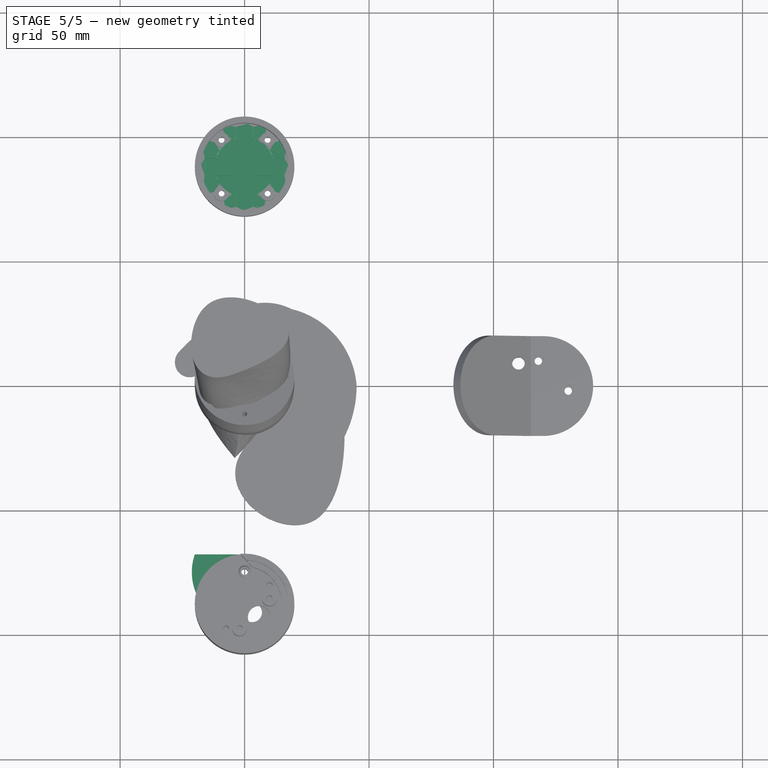
[diagram: stage 5 of 5 — top view after this stage's code; geometry added in this stage tinted green]
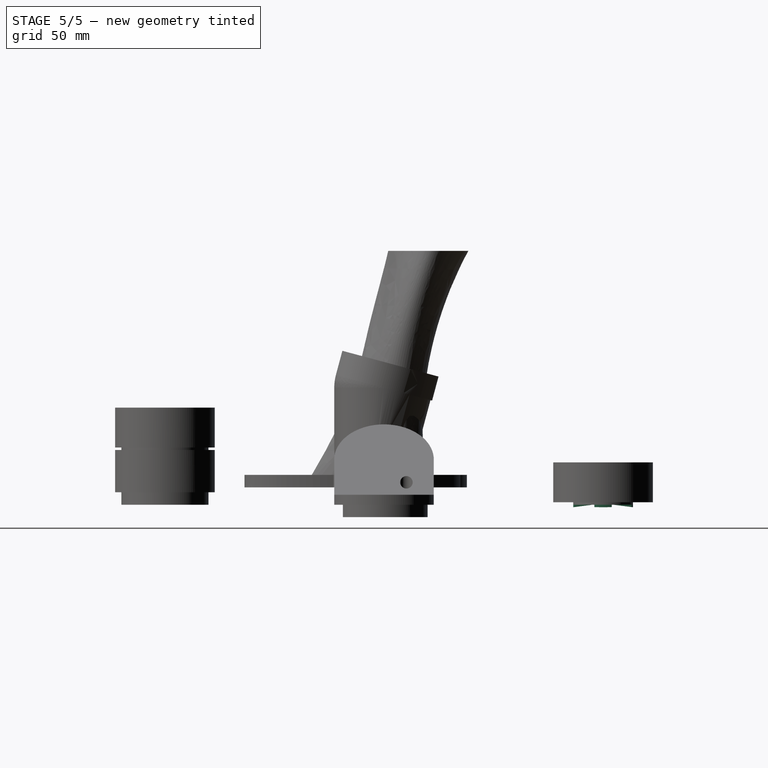
[diagram: stage 5 of 5 — right view after this stage's code; geometry added in this stage tinted green]
FEATURE [Sketcher::SketchObject] Sketch020
  ArcFitTolerance = 0
  FullyConstrained = true
  MakeInternals = false
  MapMode = 5
  Placement = pos=(0,0,10) rot=(0,0,1;0rad)
  sketch-geometry (6):
    g0: ArcOfCircle CenterX=0 CenterY=-75 CenterZ=0 NormalX=0 NormalY=0 NormalZ=1 AngleXU=0 Radius=3.25 StartAngle=4.71239 EndAngle=6.62966
    g1: LineSegment StartX=3.05687 StartY=-73.8964 StartZ=0 EndX=-2.18 EndY=-68 EndZ=0
    g2: LineSegment StartX=-2.18 StartY=-68 StartZ=0 EndX=-20 EndY=-68 EndZ=0
    g3: ArcOfCircle CenterX=0 CenterY=-75 CenterZ=0 NormalX=0 NormalY=0 NormalZ=1 AngleXU=0 Radius=21.1896 StartAngle=2.80492 EndAngle=4.03566
    g4: LineSegment StartX=-6e-16 StartY=-78.25 StartZ=0 EndX=-13.2699 EndY=-91.5199 EndZ=0
    g5: Circle CenterX=0 CenterY=-75 CenterZ=0 NormalX=0 NormalY=0 NormalZ=1 AngleXU=0 Radius=1.5
  constraints (18):
    c: PointOnObject(g0,g-2)
    c: PointOnObject(g0,g-2)
    c: Coincident(g1,g0)
    c: Coincident(g2,g1)
    c: Horizontal(g2)
    c: DistanceX(g2,g-1) = 20
    c: DistanceY(g0,g-1) = 75
    c: Angle(g-2,g1) = 0.726232
    c: Diameter(g0) = 6.5
    c: Coincident(g3,g0)
    c: Coincident(g3,g2)
    c: Coincident(g4,g0)
    c: Coincident(g4,g3)
    c: Angle(g-2,g4) = 2.35619
    c: DistanceY(g1,g-1) = 68
    c: DistanceX(g1,g0) = 2.18
    c: Coincident(g5,g0)
    c: Diameter(g5) = 3
FEATURE [PartDesign::Pad] Pad008
  Direction = (0,0,1)
  Length = 12
  Length2 = 10
  Placement = pos=(0,0,10) rot=(0,0,1;0rad)
  Profile = -> Sketch020
  ReferenceAxis = -> Sketch020 [N_Axis]
  Suppressed = false
  Type = 0
FEATURE [PartDesign::Pocket] Pocket011
  BaseFeature = -> Pad008
  Direction = (0,0,1)
  Length = 2
  Length2 = 5
  Placement = pos=(0,0,10) rot=(0,0,1;0rad)
  Profile = -> Pad008 [Face7]
  Suppressed = false
  Type = 0
FEATURE [Sketcher::SketchObject] Sketch027
  ArcFitTolerance = 0
  AttachmentSupport = -> [Pocket011]
  FullyConstrained = true
  MakeInternals = false
  MapMode = 5
  Placement = pos=(0,0,22) rot=(0,0,1;0rad)
  sketch-geometry (2):
    g0: Circle CenterX=0 CenterY=-75 CenterZ=0 NormalX=0 NormalY=0 NormalZ=1 AngleXU=0 Radius=1.5
    g1: Circle CenterX=0 CenterY=-75 CenterZ=0 NormalX=0 NormalY=0 NormalZ=1 AngleXU=0 Radius=2.5
  constraints (5):
    c: PointOnObject(g0,g-2)
    c: Coincident(g1,g0)
    c: Diameter(g1) = 5
    c: Diameter(g0) = 3
    c: DistanceY(g0,g-1) = 75
FEATURE [PartDesign::Pad] Pad013
  BaseFeature = -> Pocket011
  Direction = (0,0,1)
  Length = 1
  Length2 = 10
  Placement = pos=(0,0,10) rot=(0,0,1;0rad)
  Profile = -> Sketch027
  ReferenceAxis = -> Sketch027 [N_Axis]
  Suppressed = false
  Type = 0
FEATURE [PartDesign::Chamfer] Chamfer001
  Angle = 45
  Base = -> Pad013 [Edge21]
  BaseFeature = -> Pad013
  ChamferType = 0
  FlipDirection = false
  Placement = pos=(0,0,10) rot=(0,0,1;0rad)
  Size = 0.5
  Size2 = 1
  SupportTransform = false
  Suppressed = false
  UseAllEdges = false
FEATURE [Sketcher::SketchObject] Sketch052
  ArcFitTolerance = 0
  FullyConstrained = true
  MakeInternals = false
  MapMode = 5
  Placement = pos=(0,0,2) rot=(0,0,1;0rad)
  sketch-geometry (1):
    g0: Circle CenterX=0 CenterY=88 CenterZ=0 NormalX=0 NormalY=0 NormalZ=1 AngleXU=0 Radius=12
  constraints (3):
    c: PointOnObject(g0,g-2)
    c: DistanceY(g-1,g0) = 88
    c: Diameter(g0) = 24
FEATURE [PartDesign::Pad] Pad024
  Direction = (0,0,1)
  Length = 2
  Length2 = 10
  Placement = pos=(0,0,2) rot=(0,0,1;0rad)
  Profile = -> Sketch052
  ReferenceAxis = -> Sketch052 [N_Axis]
  Reversed = true
  Suppressed = false
  Type = 0
FEATURE [Sketcher::SketchObject] Sketch053
  ArcFitTolerance = 0
  AttachmentSupport = -> [Pad024]
  FullyConstrained = true
  MakeInternals = false
  MapMode = 5
  Placement = pos=(0,0,2) rot=(0,0,1;0rad)
  sketch-geometry (17):
    g0: LineSegment StartX=-16 StartY=91.5 StartZ=0 EndX=-3.5 EndY=91.5 EndZ=0
    g1: LineSegment [constr] StartX=-3.5 StartY=91.5 StartZ=0 EndX=3.5 EndY=91.5 EndZ=0
    g2: LineSegment StartX=3.5 StartY=91.5 StartZ=0 EndX=16 EndY=91.5 EndZ=0
    g3: LineSegment StartX=-16 StartY=91.5 StartZ=0 EndX=-16 EndY=84.5 EndZ=0
    g4: LineSegment StartX=-16 StartY=84.5 StartZ=0 EndX=-3.5 EndY=84.5 EndZ=0
    g5: LineSegment [constr] StartX=-3.5 StartY=84.5 StartZ=0 EndX=3.5 EndY=84.5 EndZ=0
    g6: LineSegment StartX=3.5 StartY=84.5 StartZ=0 EndX=16 EndY=84.5 EndZ=0
    g7: LineSegment StartX=16 StartY=84.5 StartZ=0 EndX=16 EndY=91.5 EndZ=0
    g8: LineSegment [constr] StartX=-3.5 StartY=91.5 StartZ=0 EndX=-3.5 EndY=84.5 EndZ=0
    g9: LineSegment [constr] StartX=3.5 StartY=91.5 StartZ=0 EndX=3.5 EndY=84.5 EndZ=0
    g10: GeomPoint [constr] X=0 Y=88 Z=0
    g11: LineSegment StartX=-3.5 StartY=91.5 StartZ=0 EndX=-3.5 EndY=104 EndZ=0
    g12: LineSegment StartX=3.5 StartY=91.5 StartZ=0 EndX=3.5 EndY=104 EndZ=0
    g13: LineSegment StartX=3.5 StartY=104 StartZ=0 EndX=-3.5 EndY=104 EndZ=0
    g14: LineSegment StartX=-3.5 StartY=84.5 StartZ=0 EndX=-3.5 EndY=72 EndZ=0
    g15: LineSegment StartX=-3.5 StartY=72 StartZ=0 EndX=3.5 EndY=72 EndZ=0
    g16: LineSegment StartX=3.5 StartY=72 StartZ=0 EndX=3.5 EndY=84.5 EndZ=0
  constraints (44):
    c: Horizontal(g0)
    c: Coincident(g1,g0)
    c: Horizontal(g1)
    c: Coincident(g2,g1)
    c: Horizontal(g2)
    c: Coincident(g3,g0)
    c: Vertical(g3)
    c: Coincident(g4,g3)
    c: Horizontal(g4)
    c: Coincident(g5,g4)
    c: Horizontal(g5)
    c: Coincident(g6,g5)
    c: Horizontal(g6)
    c: Coincident(g7,g6)
    c: Vertical(g7)
    c: Coincident(g2,g7)
    c: Coincident(g8,g0)
    c: Coincident(g8,g4)
    c: Vertical(g8)
    c: Coincident(g9,g1)
    c: Coincident(g9,g5)
    c: Vertical(g9)
    c: DistanceX(g0,g2) = 32
    c: PointOnObject(g10,g-2)
    c: DistanceY(g-1,g10) = 88
    c: Symmetric(g0,g6,g10)
    c: Coincident(g11,g0)
    c: Vertical(g11)
    c: Coincident(g12,g1)
    c: Vertical(g12)
    c: Coincident(g13,g12)
    c: Coincident(g13,g11)
    c: Horizontal(g13)
    c: DistanceX(g13,g13) = 7
    c: Equal(g13,g3)
    c: Coincident(g14,g4)
    c: Vertical(g14)
    c: Coincident(g15,g14)
    c: Horizontal(g15)
    c: Coincident(g16,g15)
    c: Vertical(g16)
    c: Coincident(g16,g5)
    c: DistanceY(g15,g12) = 32
    c: Symmetric(g12,g14,g10)
FEATURE [PartDesign::Pad] Pad025
  BaseFeature = -> Pad024
  Direction = (0,0,1)
  Length = 2
  Length2 = 10
  Placement = pos=(0,0,2) rot=(0,0,1;0rad)
  Profile = -> Sketch053
  ReferenceAxis = -> Sketch053 [N_Axis]
  Suppressed = false
  Type = 0
FEATURE [Sketcher::SketchObject] Sketch055
  ArcFitTolerance = 0
  AttachmentSupport = -> [Pad025]
  FullyConstrained = true
  MakeInternals = false
  MapMode = 5
  Placement = pos=(0,0,0) rot=(1,0,0;3.14159rad)
  sketch-geometry (16):
    g0: ArcOfCircle CenterX=0 CenterY=-88 CenterZ=0 NormalX=0 NormalY=0 NormalZ=1 AngleXU=0 Radius=12 StartAngle=1.27483 EndAngle=1.86677
    g1: ArcOfCircle CenterX=0 CenterY=-88 CenterZ=0 NormalX=0 NormalY=0 NormalZ=1 AngleXU=0 Radius=12 StartAngle=5.98722 EndAngle=6.57915
    g2: ArcOfCircle CenterX=0 CenterY=-88 CenterZ=0 NormalX=0 NormalY=0 NormalZ=1 AngleXU=0 Radius=12 StartAngle=2.84562 EndAngle=3.43756
    g3: ArcOfCircle CenterX=0 CenterY=-88 CenterZ=0 NormalX=0 NormalY=0 NormalZ=1 AngleXU=0 Radius=12 StartAngle=4.41642 EndAngle=5.00836
    g4: LineSegment StartX=-11.4782 StartY=-84.5 StartZ=0 EndX=-4.47824 EndY=-84.5 EndZ=0
    g5: LineSegment StartX=-4.47824 StartY=-84.5 StartZ=0 EndX=-4.47824 EndY=-91.5 EndZ=0
    g6: LineSegment StartX=-11.4782 StartY=-91.5 StartZ=0 EndX=-4.47824 EndY=-91.5 EndZ=0
    g7: LineSegment StartX=-3.5 StartY=-76.5218 StartZ=0 EndX=-3.5 EndY=-83.5218 EndZ=0
    g8: LineSegment StartX=-3.5 StartY=-83.5218 StartZ=0 EndX=3.5 EndY=-83.5218 EndZ=0
    g9: LineSegment StartX=3.5 StartY=-76.5218 StartZ=0 EndX=3.5 EndY=-83.5218 EndZ=0
    g10: LineSegment StartX=11.4782 StartY=-84.5 StartZ=0 EndX=4.47824 EndY=-84.5 EndZ=0
    g11: LineSegment StartX=4.47824 StartY=-84.5 StartZ=0 EndX=4.47824 EndY=-91.5 EndZ=0
    g12: LineSegment StartX=4.47824 StartY=-91.5 StartZ=0 EndX=11.4782 EndY=-91.5 EndZ=0
    g13: LineSegment StartX=-3.5 StartY=-99.4782 StartZ=0 EndX=-3.5 EndY=-92.4782 EndZ=0
    g14: LineSegment StartX=-3.5 StartY=-92.4782 StartZ=0 EndX=3.5 EndY=-92.4782 EndZ=0
    g15: LineSegment StartX=3.5 StartY=-92.4782 StartZ=0 EndX=3.5 EndY=-99.4782 EndZ=0
  constraints (47):
    c: PointOnObject(g0,g-2)
    c: Coincident(g1,g0)
    c: Coincident(g2,g0)
    c: Coincident(g3,g0)
    c: Diameter(g0) = 24
    c: DistanceY(g0) = -88
    c: Equal(g0,g1)
    c: Equal(g0,g2)
    c: Equal(g1,g3)
    c: Coincident(g4,g2)
    c: Horizontal(g4)
    c: Coincident(g5,g4)
    c: Vertical(g5)
    c: Coincident(g6,g2)
    c: Coincident(g6,g5)
    c: Horizontal(g6)
    c: DistanceX(g4,g4) = 7
    c: Coincident(g7,g0)
    c: Vertical(g7)
    c: Coincident(g8,g7)
    c: Horizontal(g8)
    c: Coincident(g9,g0)
    c: Coincident(g9,g8)
    c: Vertical(g9)
    c: Coincident(g10,g1)
    c: Horizontal(g10)
    c: Coincident(g11,g10)
    c: Vertical(g11)
    c: Coincident(g12,g11)
    c: Coincident(g12,g1)
    c: Horizontal(g12)
    c: Coincident(g13,g3)
    c: Vertical(g13)
    c: Coincident(g14,g13)
    c: Horizontal(g14)
    c: Coincident(g15,g14)
    c: Coincident(g15,g3)
    c: Vertical(g15)
    c: Equal(g4,g5)
    c: Equal(g8,g7)
    c: DistanceY(g9,g9) = 7
    c: Equal(g10,g11)
    c: DistanceX(g10,g10) = 7
    c: DistanceX(g14,g14) = 7
    c: Equal(g14,g13)
    c: Symmetric(g5,g10,g0)
    c: Symmetric(g7,g14,g0)
FEATURE [PartDesign::Pad] Pad027
  BaseFeature = -> Pad025
  Direction = (0,0,-1)
  Length = 1
  Length2 = 10
  Placement = pos=(0,0,2) rot=(0,0,1;0rad)
  Profile = -> Sketch055
  ReferenceAxis = -> Sketch055 [N_Axis]
  Suppressed = false
  Type = 0
FEATURE [PartDesign::Draft] Draft
  Angle = 7.3
  Base = -> Pad027 [Face28]
  BaseFeature = -> Pad027
  Placement = pos=(0,0,2) rot=(0,0,1;0rad)
  SupportTransform = false
  Suppressed = false
FEATURE [PartDesign::Draft] Draft001
  Angle = 7.3
  Base = -> Draft [Face17]
  BaseFeature = -> Draft
  Placement = pos=(0,0,2) rot=(0,0,1;0rad)
  SupportTransform = false
  Suppressed = false
FEATURE [PartDesign::Draft] Draft002
  Angle = 7.3
  Base = -> Draft001 [Face30]
  BaseFeature = -> Draft001
  Placement = pos=(0,0,2) rot=(0,0,1;0rad)
  SupportTransform = false
  Suppressed = false
FEATURE [Sketcher::SketchObject] Sketch056
  ArcFitTolerance = 0
  AttachmentSupport = -> [Draft002]
  FullyConstrained = false
  MakeInternals = false
  MapMode = 5
  Placement = pos=(0,84.5,2) rot=(1,0,0;1.5708rad)
  sketch-geometry (3):
    g0: LineSegment StartX=-4.47599 StartY=-2.00917 StartZ=0 EndX=-12.0564 EndY=-3.0088 EndZ=0
    g1: LineSegment StartX=-12.0564 StartY=-3.0088 StartZ=0 EndX=-4.47599 EndY=-3.0088 EndZ=0
    g2: LineSegment StartX=-4.47599 StartY=-2.00917 StartZ=0 EndX=-4.47599 EndY=-3.0088 EndZ=0
  constraints (5):
    c: Coincident(g1,g0)
    c: Horizontal(g1)
    c: Coincident(g2,g0)
    c: Coincident(g2,g1)
    c: Vertical(g2)
FEATURE [PartDesign::Pocket] Pocket024
  BaseFeature = -> Draft002
  Direction = (0,1,-2e-16)
  Length = 5
  Length2 = 5
  Placement = pos=(0,0,2) rot=(0,0,1;0rad)
  Profile = -> Sketch056
  ReferenceAxis = -> Sketch056 [N_Axis]
  Suppressed = false
  Type = 1
FEATURE [Sketcher::SketchObject] Sketch062
  ArcFitTolerance = 0
  AttachmentSupport = -> [Pocket030]
  FullyConstrained = false
  MakeInternals = false
  MapMode = 5
  Placement = pos=(0,0,2) rot=(0,0,1;0rad)
  sketch-geometry (22):
    g0: LineSegment [constr] StartX=-3.55 StartY=104.05 StartZ=0 EndX=3.55 EndY=104.05 EndZ=0
    g1: LineSegment [constr] StartX=3.55 StartY=104.05 StartZ=0 EndX=3.55 EndY=71.95 EndZ=0
    g2: LineSegment [constr] StartX=3.55 StartY=71.95 StartZ=0 EndX=-3.55 EndY=71.95 EndZ=0
    g3: LineSegment [constr] StartX=-3.55 StartY=71.95 StartZ=0 EndX=-3.55 EndY=104.05 EndZ=0
    g4: LineSegment [constr] StartX=-16.05 StartY=91.55 StartZ=0 EndX=16.05 EndY=91.55 EndZ=0
    g5: LineSegment [constr] StartX=16.05 StartY=91.55 StartZ=0 EndX=16.05 EndY=84.45 EndZ=0
    g6: LineSegment [constr] StartX=16.05 StartY=84.45 StartZ=0 EndX=-16.05 EndY=84.45 EndZ=0
    g7: LineSegment [constr] StartX=-16.05 StartY=84.45 StartZ=0 EndX=-16.05 EndY=91.55 EndZ=0
    g8: LineSegment StartX=-3.55 StartY=104.05 StartZ=0 EndX=-3.55 EndY=91.55 EndZ=0
    g9: LineSegment StartX=-16.05 StartY=91.55 StartZ=0 EndX=-3.55 EndY=91.55 EndZ=0
    g10: LineSegment StartX=-16.05 StartY=91.55 StartZ=0 EndX=-16.05 EndY=84.45 EndZ=0
    g11: LineSegment StartX=-16.05 StartY=84.45 StartZ=0 EndX=-3.55 EndY=84.45 EndZ=0
    g12: LineSegment StartX=-3.55 StartY=84.45 StartZ=0 EndX=-3.55 EndY=71.95 EndZ=0
    g13: LineSegment StartX=-3.55 StartY=71.95 StartZ=0 EndX=3.55 EndY=71.95 EndZ=0
    g14: LineSegment StartX=3.55 StartY=71.95 StartZ=0 EndX=3.55 EndY=84.45 EndZ=0
    g15: LineSegment StartX=3.55 StartY=84.45 StartZ=0 EndX=16.05 EndY=84.45 EndZ=0
    g16: LineSegment StartX=16.05 StartY=91.55 StartZ=0 EndX=16.05 EndY=84.45 EndZ=0
    g17: LineSegment StartX=16.05 StartY=91.55 StartZ=0 EndX=3.55 EndY=91.55 EndZ=0
    g18: LineSegment StartX=3.55 StartY=104.05 StartZ=0 EndX=3.55 EndY=91.55 EndZ=0
    g19: LineSegment StartX=-3.55 StartY=104.05 StartZ=0 EndX=3.55 EndY=104.05 EndZ=0
    g20: GeomPoint [constr] X=0 Y=88 Z=0
    g21: Circle CenterX=0 CenterY=87.8674 CenterZ=0 NormalX=0 NormalY=0 NormalZ=1 AngleXU=0 Radius=17.5
  constraints (54):
    c: Coincident(g0,g1)
    c: Coincident(g1,g2)
    c: Coincident(g2,g3)
    c: Coincident(g3,g0)
    c: Horizontal(g0)
    c: Horizontal(g2)
    c: Vertical(g1)
    c: Vertical(g3)
    c: Coincident(g4,g5)
    c: Coincident(g5,g6)
    c: Coincident(g6,g7)
    c: Coincident(g7,g4)
    c: Horizontal(g4)
    c: Horizontal(g6)
    c: Vertical(g5)
    c: Vertical(g7)
    c: DistanceX(g4,g4) = 32.1
    c: DistanceY(g1,g1) = 32.1
    c: Coincident(g8,g0)
    c: PointOnObject(g8,g4)
    c: Vertical(g8)
    c: Coincident(g9,g4)
    c: Coincident(g9,g8)
    c: Coincident(g10,g9)
    c: Coincident(g10,g6)
    c: Coincident(g11,g10)
    c: PointOnObject(g11,g3)
    c: Horizontal(g11)
    c: Coincident(g12,g11)
    c: Coincident(g12,g2)
    c: Coincident(g13,g12)
    c: Coincident(g13,g1)
    c: Coincident(g14,g13)
    c: PointOnObject(g14,g6)
    c: Vertical(g14)
    c: Coincident(g15,g14)
    c: Coincident(g15,g5)
    c: Coincident(g16,g4)
    c: Coincident(g16,g15)
    c: Coincident(g17,g16)
    c: PointOnObject(g17,g1)
    c: Horizontal(g17)
    c: Coincident(g18,g0)
    c: Coincident(g18,g17)
    c: Coincident(g19,g8)
    c: Coincident(g19,g18)
    c: DistanceX(g19,g19) = 7.1
    c: DistanceY(g16,g16) = 7.1
    c: PointOnObject(g20,g-2)
    c: DistanceY(g-1,g20) = 88
    c: Symmetric(g8,g13,g20)
    c: Symmetric(g16,g10,g20)
    c: PointOnObject(g21,g-2)
    c: Diameter(g21) = 35
FEATURE [PartDesign::Pad] Pad030
  BaseFeature = -> Pocket030
  Direction = (0,0,1)
  Length = 3
  Length2 = 10
  Profile = -> Sketch062
  ReferenceAxis = -> Sketch062 [N_Axis]
  Suppressed = false
  Type = 0
FEATURE [PartDesign::Pocket] Pocket031
  BaseFeature = -> Pad030
  Direction = (0,0,1)
  Length = 5
  Length2 = 5
  Profile = -> Pad030 [Face10,Face11,Face12,Face21]
  Suppressed = false
  Type = 0
FEATURE [PartDesign::Pocket] Pocket032
  BaseFeature = -> Pocket031
  Direction = (0,0,1)
  Length = 5
  Length2 = 5
  Profile = -> Pocket031 [Face18,Face16,Face20,Face14]
  Suppressed = false
  Type = 0
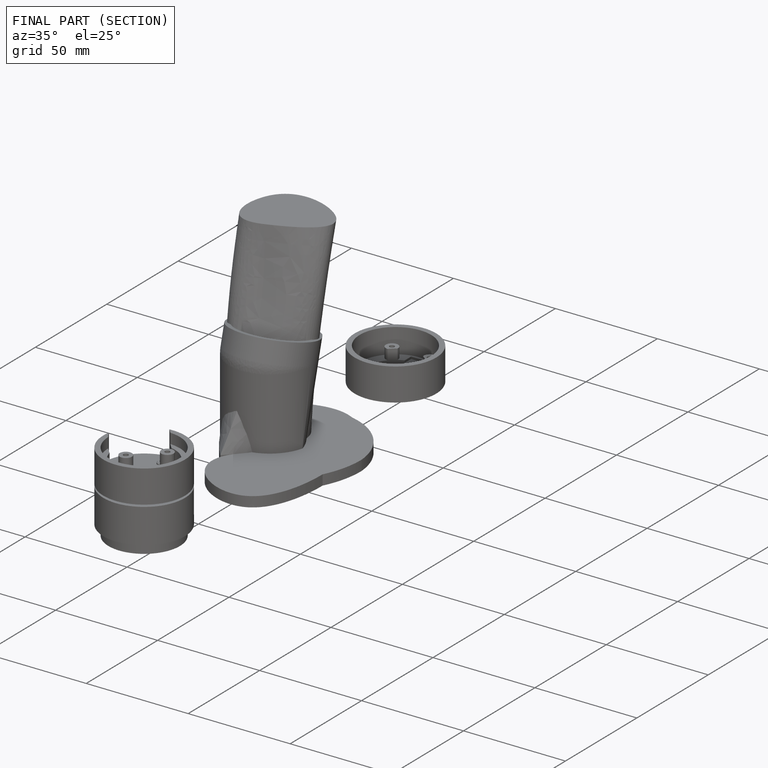
[diagram: finished part — half-section view (interior)]
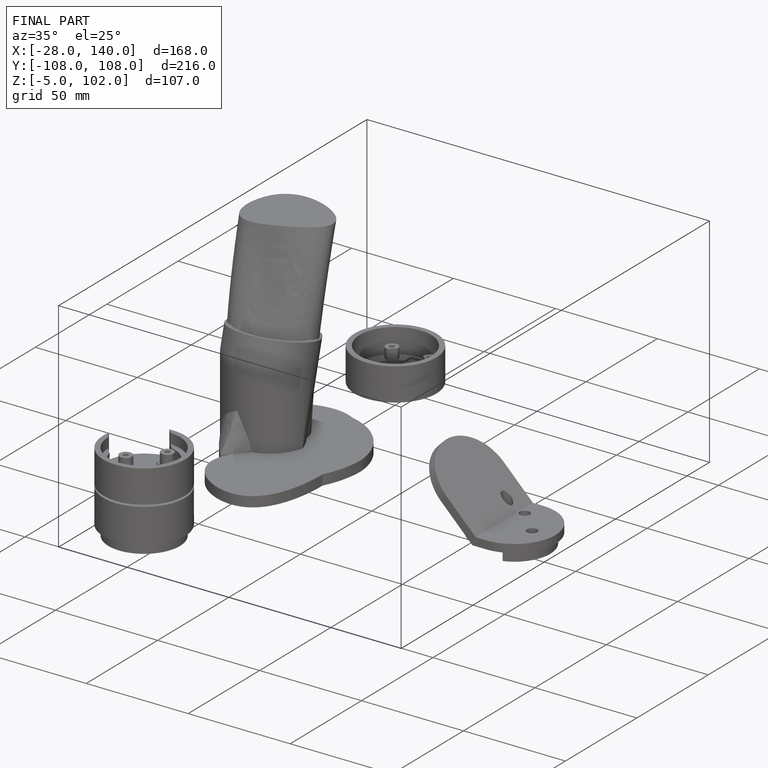
[diagram: finished part — iso view with bounding-box wireframe]
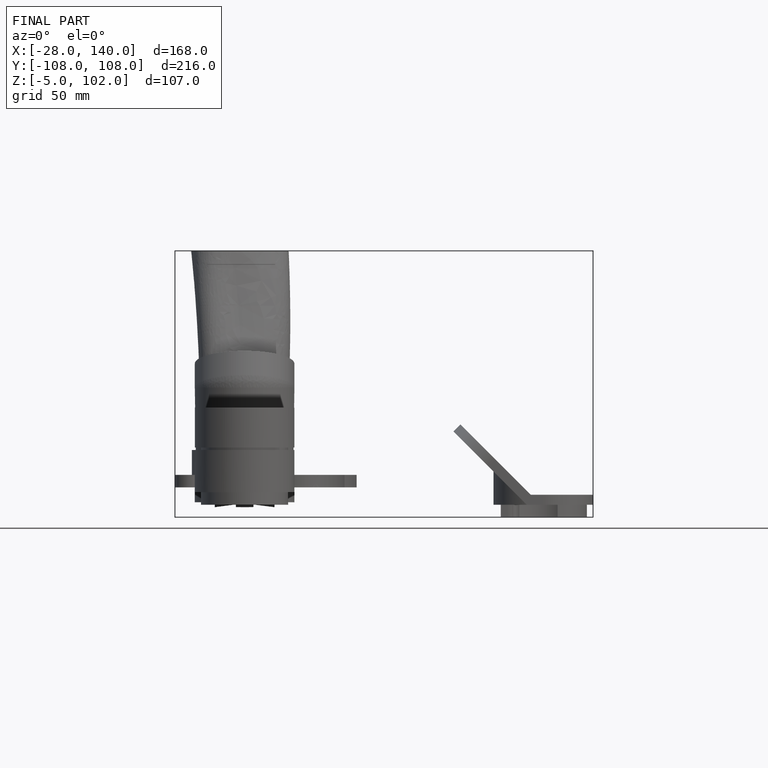
[diagram: finished part — front view with bounding-box wireframe]
